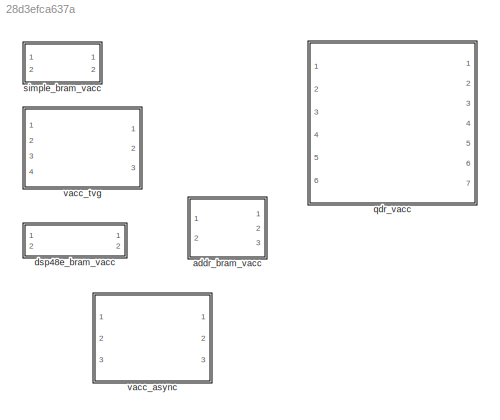
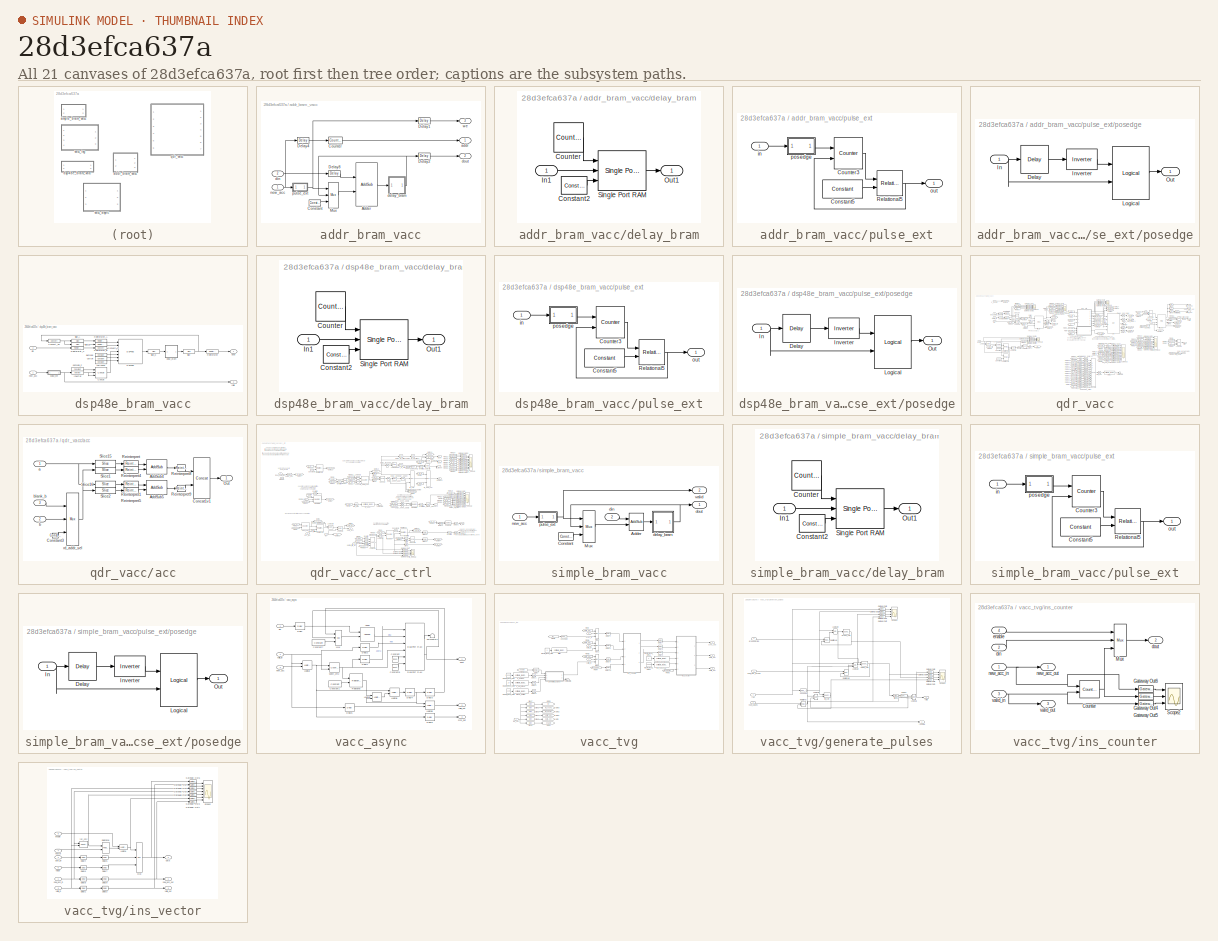
[diagram: thumbnail index - all 21 canvases of the model, root first then tree order]
MODEL slx_28d3efca637a
KIND library
CONFIG AbsTol = auto
CONFIG EnableMultiTasking = off
CONFIG FixedStep = auto
CONFIG MaxStep = auto
CONFIG MinStep = auto
CONFIG RelTol = 1e-3
CONFIG SampleTimeConstraint = Unconstrained
CONFIG SolverName = ode45
CONFIG StartTime = 0.0
CONFIG StopTime = 10.0
BLOCK [SubSystem] addr_bram_vacc
  Ports = [2, 3]
  RequestExecContextInheritance = off
  UserDataPersistent = on
BLOCK [Reference] addr_bram_vacc/Adder  REF=xbsIndex_r4/AddSub
  Ports = [2, 1]
  SourceBlock = xbsIndex_r4/AddSub
  SourceType = Xilinx Adder/Subtracter Block
BLOCK [Reference] addr_bram_vacc/Constant  REF=xbsIndex_r4/Constant
  Ports = [0, 1]
  SourceBlock = xbsIndex_r4/Constant
  SourceType = Xilinx Constant Block Block
BLOCK [Reference] addr_bram_vacc/Counter  REF=xbsIndex_r4/Counter
  Ports = [1, 1]
  SourceBlock = xbsIndex_r4/Counter
  SourceType = Xilinx Counter Block
BLOCK [Reference] addr_bram_vacc/Delay1  REF=xbsIndex_r4/Delay
  Ports = [1, 1]
  SourceBlock = xbsIndex_r4/Delay
  SourceType = Xilinx Delay Block
BLOCK [Reference] addr_bram_vacc/Delay2  REF=xbsIndex_r4/Delay
  Ports = [1, 1]
  SourceBlock = xbsIndex_r4/Delay
  SourceType = Xilinx Delay Block
BLOCK [Reference] addr_bram_vacc/Delay4  REF=xbsIndex_r4/Delay
  Ports = [1, 1]
  SourceBlock = xbsIndex_r4/Delay
  SourceType = Xilinx Delay Block
BLOCK [Reference] addr_bram_vacc/Delay8  REF=xbsIndex_r4/Delay
  Ports = [1, 1]
  SourceBlock = xbsIndex_r4/Delay
  SourceType = Xilinx Delay Block
BLOCK [Reference] addr_bram_vacc/Mux  REF=xbsIndex_r4/Mux
  Ports = [3, 1]
  SourceBlock = xbsIndex_r4/Mux
  SourceType = Xilinx Bus Multiplexer Block
BLOCK [Outport] addr_bram_vacc/addr
  VectorParamsAs1DForOutWhenUnconnected = off
BLOCK [SubSystem] addr_bram_vacc/delay_bram
  Ports = [1, 1]
  RequestExecContextInheritance = off
BLOCK [Reference] addr_bram_vacc/delay_bram/Constant2  REF=xbsIndex_r4/Constant
  Ports = [0, 1]
  SourceBlock = xbsIndex_r4/Constant
  SourceType = Xilinx Constant Block Block
BLOCK [Reference] addr_bram_vacc/delay_bram/Counter  REF=xbsIndex_r4/Counter
  Ports = [0, 1]
  SourceBlock = xbsIndex_r4/Counter
  SourceType = Xilinx Counter Block
BLOCK [Inport] addr_bram_vacc/delay_bram/In1
BLOCK [Outport] addr_bram_vacc/delay_bram/Out1
  VectorParamsAs1DForOutWhenUnconnected = off
BLOCK [Reference] addr_bram_vacc/delay_bram/Single Port RAM  REF=xbsIndex_r4/Single Port RAM
  Ports = [3, 1]
  SourceBlock = xbsIndex_r4/Single Port RAM
  SourceType = Xilinx Single Port Random Access Memory Block
BLOCK [Inport] addr_bram_vacc/din
  Port = 2
BLOCK [Outport] addr_bram_vacc/dout
  Port = 2
  VectorParamsAs1DForOutWhenUnconnected = off
BLOCK [Inport] addr_bram_vacc/new_acc
BLOCK [SubSystem] addr_bram_vacc/pulse_ext
  Ports = [1, 1]
  RequestExecContextInheritance = off
BLOCK [Reference] addr_bram_vacc/pulse_ext/Constant5  REF=xbsIndex_r4/Constant
  Ports = [0, 1]
  SourceBlock = xbsIndex_r4/Constant
  SourceType = Xilinx Constant Block Block
BLOCK [Reference] addr_bram_vacc/pulse_ext/Counter3  REF=xbsIndex_r4/Counter
  Ports = [2, 1]
  SourceBlock = xbsIndex_r4/Counter
  SourceType = Xilinx Counter Block
BLOCK [Reference] addr_bram_vacc/pulse_ext/Relational5  REF=xbsIndex_r4/Relational
  Ports = [2, 1]
  SourceBlock = xbsIndex_r4/Relational
  SourceType = Xilinx Arithmetic Relational Operator Block
BLOCK [Inport] addr_bram_vacc/pulse_ext/in
BLOCK [Outport] addr_bram_vacc/pulse_ext/out
  VectorParamsAs1DForOutWhenUnconnected = off
BLOCK [SubSystem] addr_bram_vacc/pulse_ext/posedge
  Ports = [1, 1]
  RequestExecContextInheritance = off
  Tag = Rising Edge Detector
BLOCK [Reference] addr_bram_vacc/pulse_ext/posedge/Delay  REF=xbsIndex_r4/Delay
  Ports = [1, 1]
  SourceBlock = xbsIndex_r4/Delay
  SourceType = Xilinx Delay Block
BLOCK [Inport] addr_bram_vacc/pulse_ext/posedge/In
BLOCK [Reference] addr_bram_vacc/pulse_ext/posedge/Inverter  REF=xbsIndex_r4/Inverter
  Ports = [1, 1]
  SourceBlock = xbsIndex_r4/Inverter
  SourceType = Xilinx Inverter Block
BLOCK [Reference] addr_bram_vacc/pulse_ext/posedge/Logical  REF=xbsIndex_r4/Logical
  Ports = [2, 1]
  SourceBlock = xbsIndex_r4/Logical
  SourceType = Xilinx Logical Block Block
BLOCK [Outport] addr_bram_vacc/pulse_ext/posedge/Out
  VectorParamsAs1DForOutWhenUnconnected = off
BLOCK [Outport] addr_bram_vacc/we
  Port = 3
  VectorParamsAs1DForOutWhenUnconnected = off
BLOCK [SubSystem] dsp48e_bram_vacc
  Ports = [2, 2]
  RequestExecContextInheritance = off
  UserDataPersistent = on
BLOCK [Reference] dsp48e_bram_vacc/Concat  REF=xbsIndex_r4/Concat
  Ports = [3, 1]
  SourceBlock = xbsIndex_r4/Concat
  SourceType = Xilinx Bus Concatenator Block
BLOCK [Reference] dsp48e_bram_vacc/Convert_AB  REF=xbsIndex_r4/Convert
  Ports = [1, 1]
  SourceBlock = xbsIndex_r4/Convert
  SourceType = Xilinx Type Converter Block
BLOCK [Reference] dsp48e_bram_vacc/Convert_C  REF=xbsIndex_r4/Convert
  Ports = [1, 1]
  SourceBlock = xbsIndex_r4/Convert
  SourceType = Xilinx Type Converter Block
BLOCK [Reference] dsp48e_bram_vacc/DSP48E  REF=xbsIndex_r4/DSP48E
  Ports = [7, 1]
  SourceBlock = xbsIndex_r4/DSP48E
  SourceType = Xilinx DSP48E Block
BLOCK [Reference] dsp48e_bram_vacc/Inverter  REF=xbsIndex_r4/Inverter
  Ports = [1, 1]
  SourceBlock = xbsIndex_r4/Inverter
  SourceType = Xilinx Inverter Block
BLOCK [Reference] dsp48e_bram_vacc/Reinterpret  REF=xbsIndex_r4/Reinterpret
  Ports = [1, 1]
  SourceBlock = xbsIndex_r4/Reinterpret
  SourceType = Xilinx Type Reinterpreter Block
BLOCK [Reference] dsp48e_bram_vacc/Reinterpret_A  REF=xbsIndex_r4/Reinterpret
  Ports = [1, 1]
  SourceBlock = xbsIndex_r4/Reinterpret
  SourceType = Xilinx Type Reinterpreter Block
BLOCK [Reference] dsp48e_bram_vacc/Reinterpret_B  REF=xbsIndex_r4/Reinterpret
  Ports = [1, 1]
  SourceBlock = xbsIndex_r4/Reinterpret
  SourceType = Xilinx Type Reinterpreter Block
BLOCK [Reference] dsp48e_bram_vacc/Reinterpret_C  REF=xbsIndex_r4/Reinterpret
  Ports = [1, 1]
  SourceBlock = xbsIndex_r4/Reinterpret
  SourceType = Xilinx Type Reinterpreter Block
BLOCK [Reference] dsp48e_bram_vacc/Slice  REF=xbsIndex_r4/Slice
  Ports = [1, 1]
  SourceBlock = xbsIndex_r4/Slice
  SourceType = Xilinx Bit Slice Extractor Block
BLOCK [Reference] dsp48e_bram_vacc/Slice_A  REF=xbsIndex_r4/Slice
  Ports = [1, 1]
  SourceBlock = xbsIndex_r4/Slice
  SourceType = Xilinx Bit Slice Extractor Block
BLOCK [Reference] dsp48e_bram_vacc/Slice_B  REF=xbsIndex_r4/Slice
  Ports = [1, 1]
  SourceBlock = xbsIndex_r4/Slice
  SourceType = Xilinx Bit Slice Extractor Block
BLOCK [Reference] dsp48e_bram_vacc/Slice_p  REF=xbsIndex_r4/Slice
  Ports = [1, 1]
  SourceBlock = xbsIndex_r4/Slice
  SourceType = Xilinx Bit Slice Extractor Block
BLOCK [Reference] dsp48e_bram_vacc/alumode  REF=xbsIndex_r4/Constant
  Ports = [0, 1]
  SourceBlock = xbsIndex_r4/Constant
  SourceType = Xilinx Constant Block Block
BLOCK [Reference] dsp48e_bram_vacc/carryin  REF=xbsIndex_r4/Constant
  Ports = [0, 1]
  SourceBlock = xbsIndex_r4/Constant
  SourceType = Xilinx Constant Block Block
BLOCK [Reference] dsp48e_bram_vacc/carryinsel  REF=xbsIndex_r4/Constant
  Ports = [0, 1]
  SourceBlock = xbsIndex_r4/Constant
  SourceType = Xilinx Constant Block Block
BLOCK [SubSystem] dsp48e_bram_vacc/delay_bram
  Ports = [1, 1]
  RequestExecContextInheritance = off
BLOCK [Reference] dsp48e_bram_vacc/delay_bram/Constant2  REF=xbsIndex_r4/Constant
  Ports = [0, 1]
  SourceBlock = xbsIndex_r4/Constant
  SourceType = Xilinx Constant Block Block
BLOCK [Reference] dsp48e_bram_vacc/delay_bram/Counter  REF=xbsIndex_r4/Counter
  Ports = [0, 1]
  SourceBlock = xbsIndex_r4/Counter
  SourceType = Xilinx Counter Block
BLOCK [Inport] dsp48e_bram_vacc/delay_bram/In1
BLOCK [Outport] dsp48e_bram_vacc/delay_bram/Out1
  VectorParamsAs1DForOutWhenUnconnected = off
BLOCK [Reference] dsp48e_bram_vacc/delay_bram/Single Port RAM  REF=xbsIndex_r4/Single Port RAM
  Ports = [3, 1]
  SourceBlock = xbsIndex_r4/Single Port RAM
  SourceType = Xilinx Single Port Random Access Memory Block
BLOCK [Inport] dsp48e_bram_vacc/din
  Port = 2
BLOCK [Outport] dsp48e_bram_vacc/dout
  VectorParamsAs1DForOutWhenUnconnected = off
BLOCK [Inport] dsp48e_bram_vacc/new_acc
BLOCK [Reference] dsp48e_bram_vacc/opmode_Z  REF=xbsIndex_r4/Constant
  Ports = [0, 1]
  SourceBlock = xbsIndex_r4/Constant
  SourceType = Xilinx Constant Block Block
BLOCK [SubSystem] dsp48e_bram_vacc/pulse_ext
  Ports = [1, 1]
  RequestExecContextInheritance = off
BLOCK [Reference] dsp48e_bram_vacc/pulse_ext/Constant5  REF=xbsIndex_r4/Constant
  Ports = [0, 1]
  SourceBlock = xbsIndex_r4/Constant
  SourceType = Xilinx Constant Block Block
BLOCK [Reference] dsp48e_bram_vacc/pulse_ext/Counter3  REF=xbsIndex_r4/Counter
  Ports = [2, 1]
  SourceBlock = xbsIndex_r4/Counter
  SourceType = Xilinx Counter Block
BLOCK [Reference] dsp48e_bram_vacc/pulse_ext/Relational5  REF=xbsIndex_r4/Relational
  Ports = [2, 1]
  SourceBlock = xbsIndex_r4/Relational
  SourceType = Xilinx Arithmetic Relational Operator Block
BLOCK [Inport] dsp48e_bram_vacc/pulse_ext/in
BLOCK [Outport] dsp48e_bram_vacc/pulse_ext/out
  VectorParamsAs1DForOutWhenUnconnected = off
BLOCK [SubSystem] dsp48e_bram_vacc/pulse_ext/posedge
  Ports = [1, 1]
  RequestExecContextInheritance = off
  Tag = Rising Edge Detector
BLOCK [Reference] dsp48e_bram_vacc/pulse_ext/posedge/Delay  REF=xbsIndex_r4/Delay
  Ports = [1, 1]
  SourceBlock = xbsIndex_r4/Delay
  SourceType = Xilinx Delay Block
BLOCK [Inport] dsp48e_bram_vacc/pulse_ext/posedge/In
BLOCK [Reference] dsp48e_bram_vacc/pulse_ext/posedge/Inverter  REF=xbsIndex_r4/Inverter
  Ports = [1, 1]
  SourceBlock = xbsIndex_r4/Inverter
  SourceType = Xilinx Inverter Block
BLOCK [Reference] dsp48e_bram_vacc/pulse_ext/posedge/Logical  REF=xbsIndex_r4/Logical
  Ports = [2, 1]
  SourceBlock = xbsIndex_r4/Logical
  SourceType = Xilinx Logical Block Block
BLOCK [Outport] dsp48e_bram_vacc/pulse_ext/posedge/Out
  VectorParamsAs1DForOutWhenUnconnected = off
BLOCK [Outport] dsp48e_bram_vacc/valid
  Port = 2
  VectorParamsAs1DForOutWhenUnconnected = off
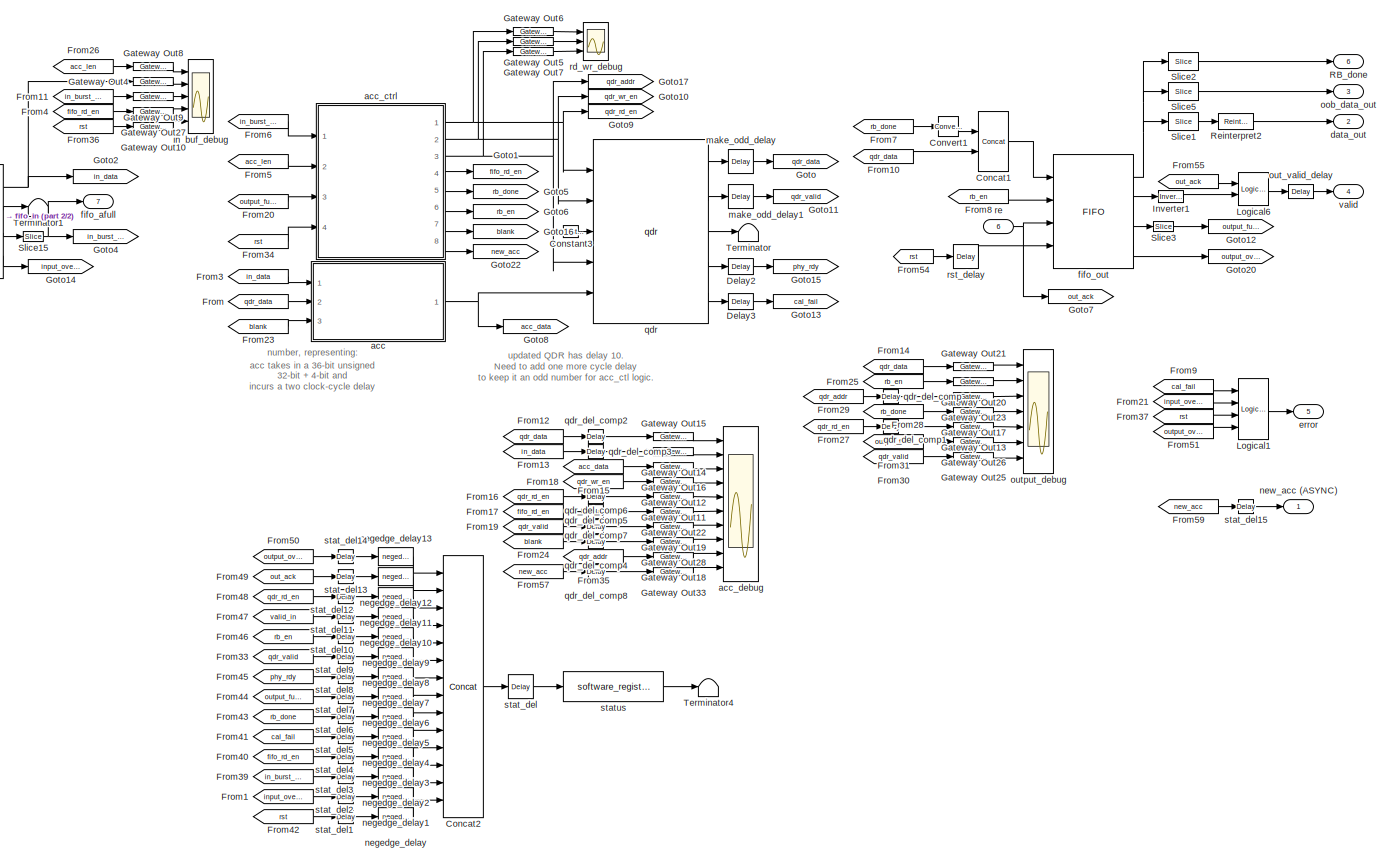
[diagram: qdr_vacc - part 1/2, center side, full height]
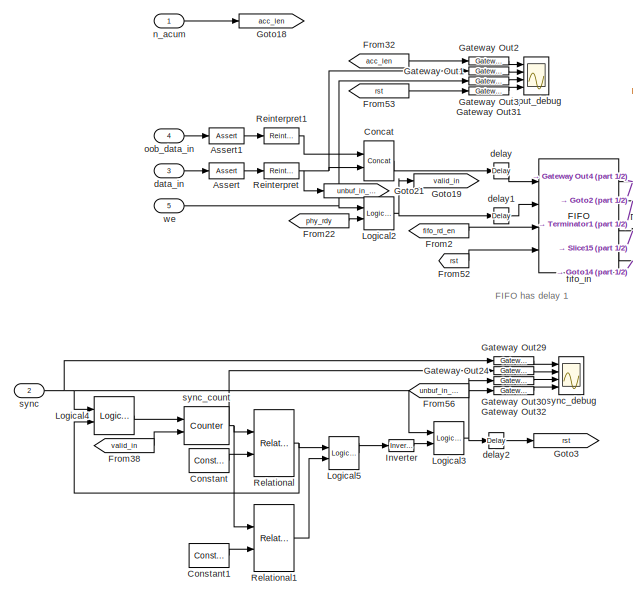
[diagram: qdr_vacc - part 2/2, middle left region]
BLOCK [SubSystem] qdr_vacc
  AttributesFormatString = Vector Length: 139264
  Ports = [6, 7]
  RequestExecContextInheritance = off
BLOCK [Reference] qdr_vacc/Assert  REF=xbsIndex_r4/Assert
  Ports = [1, 1]
  SourceBlock = xbsIndex_r4/Assert
  SourceType = Xilinx Assert Block
BLOCK [Reference] qdr_vacc/Assert1  REF=xbsIndex_r4/Assert
  Ports = [1, 1]
  SourceBlock = xbsIndex_r4/Assert
  SourceType = Xilinx Assert Block
BLOCK [Reference] qdr_vacc/Concat  REF=xbsIndex_r4/Concat
  Ports = [2, 1]
  SourceBlock = xbsIndex_r4/Concat
  SourceType = Xilinx Bus Concatenator Block
BLOCK [Reference] qdr_vacc/Concat1  REF=xbsIndex_r4/Concat
  Ports = [2, 1]
  SourceBlock = xbsIndex_r4/Concat
  SourceType = Xilinx Bus Concatenator Block
BLOCK [Reference] qdr_vacc/Concat2  REF=xbsIndex_r4/Concat
  Ports = [14, 1]
  SourceBlock = xbsIndex_r4/Concat
  SourceType = Xilinx Bus Concatenator Block
BLOCK [Reference] qdr_vacc/Constant  REF=xbsIndex_r4/Constant
  Ports = [0, 1]
  SourceBlock = xbsIndex_r4/Constant
  SourceType = Xilinx Constant Block Block
BLOCK [Reference] qdr_vacc/Constant1  REF=xbsIndex_r4/Constant
  Ports = [0, 1]
  SourceBlock = xbsIndex_r4/Constant
  SourceType = Xilinx Constant Block Block
BLOCK [Reference] qdr_vacc/Constant3  REF=xbsIndex_r4/Constant
  Ports = [0, 1]
  SourceBlock = xbsIndex_r4/Constant
  SourceType = Xilinx Constant Block Block
BLOCK [Reference] qdr_vacc/Convert1  REF=xbsIndex_r4/Convert
  Ports = [1, 1]
  SourceBlock = xbsIndex_r4/Convert
  SourceType = Xilinx Type Converter Block
BLOCK [Reference] qdr_vacc/Delay2  REF=xbsIndex_r4/Delay
  Ports = [1, 1]
  SourceBlock = xbsIndex_r4/Delay
  SourceType = Xilinx Delay Block
BLOCK [Reference] qdr_vacc/Delay3  REF=xbsIndex_r4/Delay
  Ports = [1, 1]
  SourceBlock = xbsIndex_r4/Delay
  SourceType = Xilinx Delay Block
BLOCK [From] qdr_vacc/From
  CloseFcn = tagdialog Close
  GotoTag = qdr_data
BLOCK [From] qdr_vacc/From1
  CloseFcn = tagdialog Close
  GotoTag = input_overflow
BLOCK [From] qdr_vacc/From10
  CloseFcn = tagdialog Close
  GotoTag = qdr_data
BLOCK [From] qdr_vacc/From11
  CloseFcn = tagdialog Close
  GotoTag = in_burst_rdy
BLOCK [From] qdr_vacc/From12
  CloseFcn = tagdialog Close
  GotoTag = qdr_data
BLOCK [From] qdr_vacc/From13
  CloseFcn = tagdialog Close
  GotoTag = in_data
BLOCK [From] qdr_vacc/From14
  CloseFcn = tagdialog Close
  GotoTag = qdr_data
BLOCK [From] qdr_vacc/From15
  CloseFcn = tagdialog Close
  GotoTag = acc_data
BLOCK [From] qdr_vacc/From16
  CloseFcn = tagdialog Close
  GotoTag = qdr_rd_en
BLOCK [From] qdr_vacc/From17
  CloseFcn = tagdialog Close
  GotoTag = fifo_rd_en
BLOCK [From] qdr_vacc/From18
  CloseFcn = tagdialog Close
  GotoTag = qdr_wr_en
BLOCK [From] qdr_vacc/From19
  CloseFcn = tagdialog Close
  GotoTag = qdr_valid
BLOCK [From] qdr_vacc/From2
  CloseFcn = tagdialog Close
  GotoTag = fifo_rd_en
BLOCK [From] qdr_vacc/From20
  CloseFcn = tagdialog Close
  GotoTag = output_full
BLOCK [From] qdr_vacc/From21
  CloseFcn = tagdialog Close
  GotoTag = input_overflow
BLOCK [From] qdr_vacc/From22
  CloseFcn = tagdialog Close
  GotoTag = phy_rdy
BLOCK [From] qdr_vacc/From23
  CloseFcn = tagdialog Close
  GotoTag = blank
BLOCK [From] qdr_vacc/From24
  CloseFcn = tagdialog Close
  GotoTag = blank
BLOCK [From] qdr_vacc/From25
  CloseFcn = tagdialog Close
  GotoTag = rb_en
BLOCK [From] qdr_vacc/From26
  CloseFcn = tagdialog Close
  GotoTag = acc_len
BLOCK [From] qdr_vacc/From27
  CloseFcn = tagdialog Close
  GotoTag = qdr_rd_en
BLOCK [From] qdr_vacc/From28
  CloseFcn = tagdialog Close
  GotoTag = rb_done
BLOCK [From] qdr_vacc/From29
  CloseFcn = tagdialog Close
  GotoTag = qdr_addr
BLOCK [From] qdr_vacc/From3
  CloseFcn = tagdialog Close
  GotoTag = in_data
BLOCK [From] qdr_vacc/From30
  CloseFcn = tagdialog Close
  GotoTag = qdr_valid
BLOCK [From] qdr_vacc/From31
  CloseFcn = tagdialog Close
  GotoTag = output_full
BLOCK [From] qdr_vacc/From32
  CloseFcn = tagdialog Close
  GotoTag = acc_len
BLOCK [From] qdr_vacc/From33
  CloseFcn = tagdialog Close
  GotoTag = qdr_valid
BLOCK [From] qdr_vacc/From34
  CloseFcn = tagdialog Close
  GotoTag = rst
BLOCK [From] qdr_vacc/From35
  CloseFcn = tagdialog Close
  GotoTag = qdr_addr
BLOCK [From] qdr_vacc/From36
  CloseFcn = tagdialog Close
  GotoTag = rst
BLOCK [From] qdr_vacc/From37
  CloseFcn = tagdialog Close
  GotoTag = rst
BLOCK [From] qdr_vacc/From38
  CloseFcn = tagdialog Close
  GotoTag = valid_in
BLOCK [From] qdr_vacc/From39
  CloseFcn = tagdialog Close
  GotoTag = in_burst_rdy
BLOCK [From] qdr_vacc/From4
  CloseFcn = tagdialog Close
  GotoTag = fifo_rd_en
BLOCK [From] qdr_vacc/From40
  CloseFcn = tagdialog Close
  GotoTag = fifo_rd_en
BLOCK [From] qdr_vacc/From41
  CloseFcn = tagdialog Close
  GotoTag = cal_fail
BLOCK [From] qdr_vacc/From42
  CloseFcn = tagdialog Close
  GotoTag = rst
BLOCK [From] qdr_vacc/From43
  CloseFcn = tagdialog Close
  GotoTag = rb_done
BLOCK [From] qdr_vacc/From44
  CloseFcn = tagdialog Close
  GotoTag = output_full
BLOCK [From] qdr_vacc/From45
  CloseFcn = tagdialog Close
  GotoTag = phy_rdy
BLOCK [From] qdr_vacc/From46
  CloseFcn = tagdialog Close
  GotoTag = rb_en
BLOCK [From] qdr_vacc/From47
  CloseFcn = tagdialog Close
  GotoTag = valid_in
BLOCK [From] qdr_vacc/From48
  CloseFcn = tagdialog Close
  GotoTag = qdr_rd_en
BLOCK [From] qdr_vacc/From49
  CloseFcn = tagdialog Close
  GotoTag = out_ack
BLOCK [From] qdr_vacc/From5
  CloseFcn = tagdialog Close
  GotoTag = acc_len
BLOCK [From] qdr_vacc/From50
  CloseFcn = tagdialog Close
  GotoTag = output_over
BLOCK [From] qdr_vacc/From51
  CloseFcn = tagdialog Close
  GotoTag = output_over
BLOCK [From] qdr_vacc/From52
  CloseFcn = tagdialog Close
  GotoTag = rst
BLOCK [From] qdr_vacc/From53
  CloseFcn = tagdialog Close
  GotoTag = rst
BLOCK [From] qdr_vacc/From54
  CloseFcn = tagdialog Close
  GotoTag = rst
BLOCK [From] qdr_vacc/From55
  CloseFcn = tagdialog Close
  GotoTag = out_ack
BLOCK [From] qdr_vacc/From56
  CloseFcn = tagdialog Close
  GotoTag = unbuf_in_data
BLOCK [From] qdr_vacc/From57
  CloseFcn = tagdialog Close
  GotoTag = new_acc
BLOCK [From] qdr_vacc/From59
  CloseFcn = tagdialog Close
  GotoTag = new_acc
BLOCK [From] qdr_vacc/From6
  CloseFcn = tagdialog Close
  GotoTag = in_burst_rdy
BLOCK [From] qdr_vacc/From7
  CloseFcn = tagdialog Close
  GotoTag = rb_done
BLOCK [From] qdr_vacc/From8
  CloseFcn = tagdialog Close
  GotoTag = rb_en
BLOCK [From] qdr_vacc/From9
  CloseFcn = tagdialog Close
  GotoTag = cal_fail
BLOCK [Reference] qdr_vacc/Gateway Out1  REF=xbsIndex_r4/Gateway Out
  Ports = [1, 1]
  SourceBlock = xbsIndex_r4/Gateway Out
  SourceType = Xilinx Gateway Out Block
BLOCK [Reference] qdr_vacc/Gateway Out10  REF=xbsIndex_r4/Gateway Out
  Ports = [1, 1]
  SourceBlock = xbsIndex_r4/Gateway Out
  SourceType = Xilinx Gateway Out Block
BLOCK [Reference] qdr_vacc/Gateway Out11  REF=xbsIndex_r4/Gateway Out
  Ports = [1, 1]
  SourceBlock = xbsIndex_r4/Gateway Out
  SourceType = Xilinx Gateway Out Block
BLOCK [Reference] qdr_vacc/Gateway Out12  REF=xbsIndex_r4/Gateway Out
  Ports = [1, 1]
  SourceBlock = xbsIndex_r4/Gateway Out
  SourceType = Xilinx Gateway Out Block
BLOCK [Reference] qdr_vacc/Gateway Out13  REF=xbsIndex_r4/Gateway Out
  Ports = [1, 1]
  SourceBlock = xbsIndex_r4/Gateway Out
  SourceType = Xilinx Gateway Out Block
BLOCK [Reference] qdr_vacc/Gateway Out14  REF=xbsIndex_r4/Gateway Out
  Ports = [1, 1]
  SourceBlock = xbsIndex_r4/Gateway Out
  SourceType = Xilinx Gateway Out Block
BLOCK [Reference] qdr_vacc/Gateway Out15  REF=xbsIndex_r4/Gateway Out
  Ports = [1, 1]
  SourceBlock = xbsIndex_r4/Gateway Out
  SourceType = Xilinx Gateway Out Block
BLOCK [Reference] qdr_vacc/Gateway Out16  REF=xbsIndex_r4/Gateway Out
  Ports = [1, 1]
  SourceBlock = xbsIndex_r4/Gateway Out
  SourceType = Xilinx Gateway Out Block
BLOCK [Reference] qdr_vacc/Gateway Out17  REF=xbsIndex_r4/Gateway Out
  Ports = [1, 1]
  SourceBlock = xbsIndex_r4/Gateway Out
  SourceType = Xilinx Gateway Out Block
BLOCK [Reference] qdr_vacc/Gateway Out18  REF=xbsIndex_r4/Gateway Out
  Ports = [1, 1]
  SourceBlock = xbsIndex_r4/Gateway Out
  SourceType = Xilinx Gateway Out Block
BLOCK [Reference] qdr_vacc/Gateway Out19  REF=xbsIndex_r4/Gateway Out
  Ports = [1, 1]
  SourceBlock = xbsIndex_r4/Gateway Out
  SourceType = Xilinx Gateway Out Block
BLOCK [Reference] qdr_vacc/Gateway Out2  REF=xbsIndex_r4/Gateway Out
  Ports = [1, 1]
  SourceBlock = xbsIndex_r4/Gateway Out
  SourceType = Xilinx Gateway Out Block
BLOCK [Reference] qdr_vacc/Gateway Out20  REF=xbsIndex_r4/Gateway Out
  Ports = [1, 1]
  SourceBlock = xbsIndex_r4/Gateway Out
  SourceType = Xilinx Gateway Out Block
BLOCK [Reference] qdr_vacc/Gateway Out21  REF=xbsIndex_r4/Gateway Out
  Ports = [1, 1]
  SourceBlock = xbsIndex_r4/Gateway Out
  SourceType = Xilinx Gateway Out Block
BLOCK [Reference] qdr_vacc/Gateway Out22  REF=xbsIndex_r4/Gateway Out
  Ports = [1, 1]
  SourceBlock = xbsIndex_r4/Gateway Out
  SourceType = Xilinx Gateway Out Block
BLOCK [Reference] qdr_vacc/Gateway Out23  REF=xbsIndex_r4/Gateway Out
  Ports = [1, 1]
  SourceBlock = xbsIndex_r4/Gateway Out
  SourceType = Xilinx Gateway Out Block
BLOCK [Reference] qdr_vacc/Gateway Out24  REF=xbsIndex_r4/Gateway Out
  Ports = [1, 1]
  SourceBlock = xbsIndex_r4/Gateway Out
  SourceType = Xilinx Gateway Out Block
BLOCK [Reference] qdr_vacc/Gateway Out25  REF=xbsIndex_r4/Gateway Out
  Ports = [1, 1]
  SourceBlock = xbsIndex_r4/Gateway Out
  SourceType = Xilinx Gateway Out Block
BLOCK [Reference] qdr_vacc/Gateway Out26  REF=xbsIndex_r4/Gateway Out
  Ports = [1, 1]
  SourceBlock = xbsIndex_r4/Gateway Out
  SourceType = Xilinx Gateway Out Block
BLOCK [Reference] qdr_vacc/Gateway Out27  REF=xbsIndex_r4/Gateway Out
  Ports = [1, 1]
  SourceBlock = xbsIndex_r4/Gateway Out
  SourceType = Xilinx Gateway Out Block
BLOCK [Reference] qdr_vacc/Gateway Out28  REF=xbsIndex_r4/Gateway Out
  Ports = [1, 1]
  SourceBlock = xbsIndex_r4/Gateway Out
  SourceType = Xilinx Gateway Out Block
BLOCK [Reference] qdr_vacc/Gateway Out29  REF=xbsIndex_r4/Gateway Out
  Ports = [1, 1]
  SourceBlock = xbsIndex_r4/Gateway Out
  SourceType = Xilinx Gateway Out Block
BLOCK [Reference] qdr_vacc/Gateway Out3  REF=xbsIndex_r4/Gateway Out
  Ports = [1, 1]
  SourceBlock = xbsIndex_r4/Gateway Out
  SourceType = Xilinx Gateway Out Block
BLOCK [Reference] qdr_vacc/Gateway Out30  REF=xbsIndex_r4/Gateway Out
  Ports = [1, 1]
  SourceBlock = xbsIndex_r4/Gateway Out
  SourceType = Xilinx Gateway Out Block
BLOCK [Reference] qdr_vacc/Gateway Out31  REF=xbsIndex_r4/Gateway Out
  Ports = [1, 1]
  SourceBlock = xbsIndex_r4/Gateway Out
  SourceType = Xilinx Gateway Out Block
BLOCK [Reference] qdr_vacc/Gateway Out32  REF=xbsIndex_r4/Gateway Out
  Ports = [1, 1]
  SourceBlock = xbsIndex_r4/Gateway Out
  SourceType = Xilinx Gateway Out Block
BLOCK [Reference] qdr_vacc/Gateway Out33  REF=xbsIndex_r4/Gateway Out
  Ports = [1, 1]
  SourceBlock = xbsIndex_r4/Gateway Out
  SourceType = Xilinx Gateway Out Block
BLOCK [Reference] qdr_vacc/Gateway Out4  REF=xbsIndex_r4/Gateway Out
  Ports = [1, 1]
  SourceBlock = xbsIndex_r4/Gateway Out
  SourceType = Xilinx Gateway Out Block
BLOCK [Reference] qdr_vacc/Gateway Out5  REF=xbsIndex_r4/Gateway Out
  Ports = [1, 1]
  SourceBlock = xbsIndex_r4/Gateway Out
  SourceType = Xilinx Gateway Out Block
BLOCK [Reference] qdr_vacc/Gateway Out6  REF=xbsIndex_r4/Gateway Out
  Ports = [1, 1]
  SourceBlock = xbsIndex_r4/Gateway Out
  SourceType = Xilinx Gateway Out Block
BLOCK [Reference] qdr_vacc/Gateway Out7  REF=xbsIndex_r4/Gateway Out
  Ports = [1, 1]
  SourceBlock = xbsIndex_r4/Gateway Out
  SourceType = Xilinx Gateway Out Block
BLOCK [Reference] qdr_vacc/Gateway Out8  REF=xbsIndex_r4/Gateway Out
  Ports = [1, 1]
  SourceBlock = xbsIndex_r4/Gateway Out
  SourceType = Xilinx Gateway Out Block
BLOCK [Reference] qdr_vacc/Gateway Out9  REF=xbsIndex_r4/Gateway Out
  Ports = [1, 1]
  SourceBlock = xbsIndex_r4/Gateway Out
  SourceType = Xilinx Gateway Out Block
BLOCK [Goto] qdr_vacc/Goto
  GotoTag = qdr_data
BLOCK [Goto] qdr_vacc/Goto1
  GotoTag = fifo_rd_en
BLOCK [Goto] qdr_vacc/Goto10
  GotoTag = qdr_wr_en
BLOCK [Goto] qdr_vacc/Goto11
  GotoTag = qdr_valid
BLOCK [Goto] qdr_vacc/Goto12
  GotoTag = output_full
BLOCK [Goto] qdr_vacc/Goto13
  GotoTag = cal_fail
BLOCK [Goto] qdr_vacc/Goto14
  GotoTag = input_overflow
BLOCK [Goto] qdr_vacc/Goto15
  GotoTag = phy_rdy
BLOCK [Goto] qdr_vacc/Goto16
  GotoTag = blank
BLOCK [Goto] qdr_vacc/Goto17
  GotoTag = qdr_addr
BLOCK [Goto] qdr_vacc/Goto18
  GotoTag = acc_len
BLOCK [Goto] qdr_vacc/Goto19
  GotoTag = valid_in
BLOCK [Goto] qdr_vacc/Goto2
  GotoTag = in_data
BLOCK [Goto] qdr_vacc/Goto20
  GotoTag = output_over
BLOCK [Goto] qdr_vacc/Goto21
  GotoTag = unbuf_in_data
BLOCK [Goto] qdr_vacc/Goto22
  GotoTag = new_acc
BLOCK [Goto] qdr_vacc/Goto3
  GotoTag = rst
BLOCK [Goto] qdr_vacc/Goto4
  GotoTag = in_burst_rdy
BLOCK [Goto] qdr_vacc/Goto5
  GotoTag = rb_done
BLOCK [Goto] qdr_vacc/Goto6
  GotoTag = rb_en
BLOCK [Goto] qdr_vacc/Goto7
  GotoTag = out_ack
BLOCK [Goto] qdr_vacc/Goto8
  GotoTag = acc_data
BLOCK [Goto] qdr_vacc/Goto9
  GotoTag = qdr_rd_en
BLOCK [Reference] qdr_vacc/Inverter  REF=xbsIndex_r4/Inverter
  Ports = [1, 1]
  SourceBlock = xbsIndex_r4/Inverter
  SourceType = Xilinx Inverter Block
BLOCK [Reference] qdr_vacc/Inverter1  REF=xbsIndex_r4/Inverter
  Ports = [1, 1]
  SourceBlock = xbsIndex_r4/Inverter
  SourceType = Xilinx Inverter Block
BLOCK [Reference] qdr_vacc/Logical1  REF=xbsIndex_r4/Logical
  Ports = [4, 1]
  SourceBlock = xbsIndex_r4/Logical
  SourceType = Xilinx Logical Block Block
BLOCK [Reference] qdr_vacc/Logical2  REF=xbsIndex_r4/Logical
  Ports = [2, 1]
  SourceBlock = xbsIndex_r4/Logical
  SourceType = Xilinx Logical Block Block
BLOCK [Reference] qdr_vacc/Logical3  REF=xbsIndex_r4/Logical
  Ports = [2, 1]
  SourceBlock = xbsIndex_r4/Logical
  SourceType = Xilinx Logical Block Block
BLOCK [Reference] qdr_vacc/Logical4  REF=xbsIndex_r4/Logical
  Ports = [2, 1]
  SourceBlock = xbsIndex_r4/Logical
  SourceType = Xilinx Logical Block Block
BLOCK [Reference] qdr_vacc/Logical5  REF=xbsIndex_r4/Logical
  Ports = [2, 1]
  SourceBlock = xbsIndex_r4/Logical
  SourceType = Xilinx Logical Block Block
BLOCK [Reference] qdr_vacc/Logical6  REF=xbsIndex_r4/Logical
  Ports = [2, 1]
  SourceBlock = xbsIndex_r4/Logical
  SourceType = Xilinx Logical Block Block
BLOCK [Outport] qdr_vacc/RB_done
  Port = 6
  VectorParamsAs1DForOutWhenUnconnected = off
BLOCK [Reference] qdr_vacc/Reinterpret  REF=xbsIndex_r4/Reinterpret
  Ports = [1, 1]
  SourceBlock = xbsIndex_r4/Reinterpret
  SourceType = Xilinx Type Reinterpreter Block
BLOCK [Reference] qdr_vacc/Reinterpret1  REF=xbsIndex_r4/Reinterpret
  Ports = [1, 1]
  SourceBlock = xbsIndex_r4/Reinterpret
  SourceType = Xilinx Type Reinterpreter Block
BLOCK [Reference] qdr_vacc/Reinterpret2  REF=xbsIndex_r4/Reinterpret
  Ports = [1, 1]
  SourceBlock = xbsIndex_r4/Reinterpret
  SourceType = Xilinx Type Reinterpreter Block
BLOCK [Reference] qdr_vacc/Relational  REF=xbsIndex_r4/Relational
  Ports = [2, 1]
  SourceBlock = xbsIndex_r4/Relational
  SourceType = Xilinx Arithmetic Relational Operator Block
BLOCK [Reference] qdr_vacc/Relational1  REF=xbsIndex_r4/Relational
  Ports = [2, 1]
  SourceBlock = xbsIndex_r4/Relational
  SourceType = Xilinx Arithmetic Relational Operator Block
BLOCK [Reference] qdr_vacc/Slice1  REF=xbsIndex_r4/Slice
  Ports = [1, 1]
  SourceBlock = xbsIndex_r4/Slice
  SourceType = Xilinx Bit Slice Extractor Block
BLOCK [Reference] qdr_vacc/Slice15  REF=xbsIndex_r4/Slice
  Ports = [1, 1]
  SourceBlock = xbsIndex_r4/Slice
  SourceType = Xilinx Bit Slice Extractor Block
BLOCK [Reference] qdr_vacc/Slice2  REF=xbsIndex_r4/Slice
  Ports = [1, 1]
  SourceBlock = xbsIndex_r4/Slice
  SourceType = Xilinx Bit Slice Extractor Block
BLOCK [Reference] qdr_vacc/Slice3  REF=xbsIndex_r4/Slice
  Ports = [1, 1]
  SourceBlock = xbsIndex_r4/Slice
  SourceType = Xilinx Bit Slice Extractor Block
BLOCK [Reference] qdr_vacc/Slice5  REF=xbsIndex_r4/Slice
  Ports = [1, 1]
  SourceBlock = xbsIndex_r4/Slice
  SourceType = Xilinx Bit Slice Extractor Block
BLOCK [Terminator] qdr_vacc/Terminator
BLOCK [Terminator] qdr_vacc/Terminator1
BLOCK [Terminator] qdr_vacc/Terminator4
BLOCK [SubSystem] qdr_vacc/acc
  Ports = [3, 1]
  RequestExecContextInheritance = off
BLOCK [Reference] qdr_vacc/acc/AddSub4  REF=xbsIndex_r4/AddSub
  Ports = [2, 1]
  SourceBlock = xbsIndex_r4/AddSub
  SourceType = Xilinx Adder/Subtracter Block
BLOCK [Reference] qdr_vacc/acc/AddSub5  REF=xbsIndex_r4/AddSub
  Ports = [2, 1]
  SourceBlock = xbsIndex_r4/AddSub
  SourceType = Xilinx Adder/Subtracter Block
BLOCK [Reference] qdr_vacc/acc/Concat1v1  REF=xbsIndex_r4/Concat
  Ports = [2, 1]
  SourceBlock = xbsIndex_r4/Concat
  SourceType = Xilinx Bus Concatenator Block
BLOCK [Reference] qdr_vacc/acc/Constant3  REF=xbsIndex_r4/Constant
  Ports = [0, 1]
  SourceBlock = xbsIndex_r4/Constant
  SourceType = Xilinx Constant Block Block
BLOCK [Outport] qdr_vacc/acc/Out
  VectorParamsAs1DForOutWhenUnconnected = off
BLOCK [Reference] qdr_vacc/acc/Reinterpret  REF=xbsIndex_r4/Reinterpret
  Ports = [1, 1]
  SourceBlock = xbsIndex_r4/Reinterpret
  SourceType = Xilinx Type Reinterpreter Block
BLOCK [Reference] qdr_vacc/acc/Reinterpret1  REF=xbsIndex_r4/Reinterpret
  Ports = [1, 1]
  SourceBlock = xbsIndex_r4/Reinterpret
  SourceType = Xilinx Type Reinterpreter Block
BLOCK [Reference] qdr_vacc/acc/Reinterpret4  REF=xbsIndex_r4/Reinterpret
  Ports = [1, 1]
  SourceBlock = xbsIndex_r4/Reinterpret
  SourceType = Xilinx Type Reinterpreter Block
BLOCK [Reference] qdr_vacc/acc/Reinterpret5  REF=xbsIndex_r4/Reinterpret
  Ports = [1, 1]
  SourceBlock = xbsIndex_r4/Reinterpret
  SourceType = Xilinx Type Reinterpreter Block
BLOCK [Reference] qdr_vacc/acc/Reinterpret8  REF=xbsIndex_r4/Reinterpret
  Ports = [1, 1]
  SourceBlock = xbsIndex_r4/Reinterpret
  SourceType = Xilinx Type Reinterpreter Block
BLOCK [Reference] qdr_vacc/acc/Reinterpret9  REF=xbsIndex_r4/Reinterpret
  Ports = [1, 1]
  SourceBlock = xbsIndex_r4/Reinterpret
  SourceType = Xilinx Type Reinterpreter Block
BLOCK [Reference] qdr_vacc/acc/Slice1  REF=xbsIndex_r4/Slice
  Ports = [1, 1]
  SourceBlock = xbsIndex_r4/Slice
  SourceType = Xilinx Bit Slice Extractor Block
BLOCK [Reference] qdr_vacc/acc/Slice15  REF=xbsIndex_r4/Slice
  Ports = [1, 1]
  SourceBlock = xbsIndex_r4/Slice
  SourceType = Xilinx Bit Slice Extractor Block
BLOCK [Reference] qdr_vacc/acc/Slice16  REF=xbsIndex_r4/Slice
  Ports = [1, 1]
  SourceBlock = xbsIndex_r4/Slice
  SourceType = Xilinx Bit Slice Extractor Block
BLOCK [Reference] qdr_vacc/acc/Slice2  REF=xbsIndex_r4/Slice
  Ports = [1, 1]
  SourceBlock = xbsIndex_r4/Slice
  SourceType = Xilinx Bit Slice Extractor Block
BLOCK [Inport] qdr_vacc/acc/a
BLOCK [Inport] qdr_vacc/acc/b
  Port = 2
BLOCK [Inport] qdr_vacc/acc/blank_b
  Port = 3
BLOCK [Reference] qdr_vacc/acc/rd_addr_sel  REF=xbsIndex_r4/Mux
  Ports = [3, 1]
  SourceBlock = xbsIndex_r4/Mux
  SourceType = Xilinx Bus Multiplexer Block
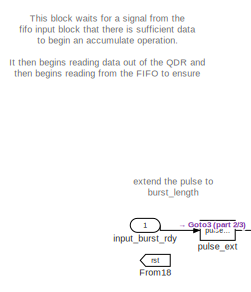
[diagram: qdr_vacc/acc_ctrl - part 1/3, top left region]
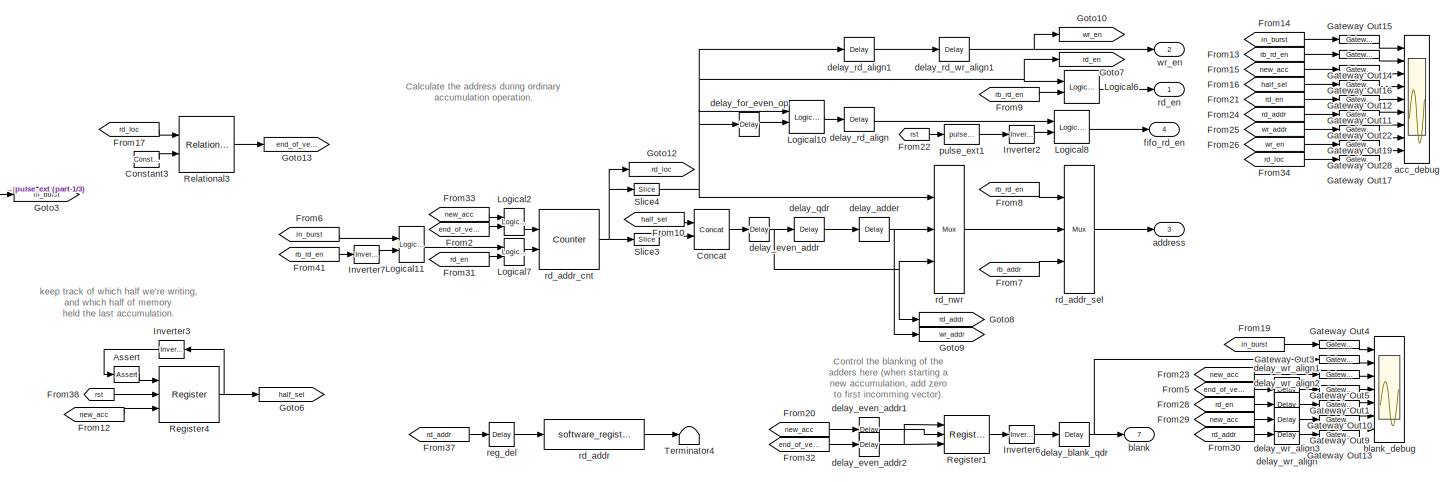
[diagram: qdr_vacc/acc_ctrl - part 2/3, full width, top band]
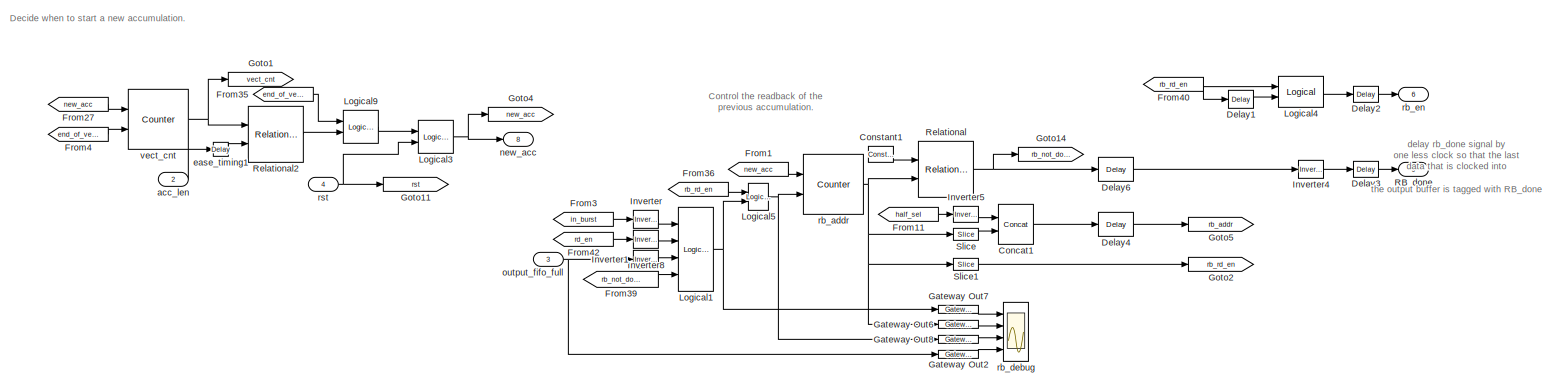
[diagram: qdr_vacc/acc_ctrl - part 3/3, full width, bottom band]
BLOCK [SubSystem] qdr_vacc/acc_ctrl
  Ports = [4, 8]
  RequestExecContextInheritance = off
BLOCK [Reference] qdr_vacc/acc_ctrl/Assert  REF=xbsIndex_r4/Assert
  Ports = [1, 1]
  SourceBlock = xbsIndex_r4/Assert
  SourceType = Xilinx Assert Block
BLOCK [Reference] qdr_vacc/acc_ctrl/Concat  REF=xbsIndex_r4/Concat
  Ports = [2, 1]
  SourceBlock = xbsIndex_r4/Concat
  SourceType = Xilinx Bus Concatenator Block
BLOCK [Reference] qdr_vacc/acc_ctrl/Concat1  REF=xbsIndex_r4/Concat
  Ports = [2, 1]
  SourceBlock = xbsIndex_r4/Concat
  SourceType = Xilinx Bus Concatenator Block
BLOCK [Reference] qdr_vacc/acc_ctrl/Constant1  REF=xbsIndex_r4/Constant
  Ports = [0, 1]
  SourceBlock = xbsIndex_r4/Constant
  SourceType = Xilinx Constant Block Block
BLOCK [Reference] qdr_vacc/acc_ctrl/Constant3  REF=xbsIndex_r4/Constant
  Ports = [0, 1]
  SourceBlock = xbsIndex_r4/Constant
  SourceType = Xilinx Constant Block Block
BLOCK [Reference] qdr_vacc/acc_ctrl/Delay1  REF=xbsIndex_r4/Delay
  Ports = [1, 1]
  SourceBlock = xbsIndex_r4/Delay
  SourceType = Xilinx Delay Block
BLOCK [Reference] qdr_vacc/acc_ctrl/Delay2  REF=xbsIndex_r4/Delay
  Ports = [1, 1]
  SourceBlock = xbsIndex_r4/Delay
  SourceType = Xilinx Delay Block
BLOCK [Reference] qdr_vacc/acc_ctrl/Delay3  REF=xbsIndex_r4/Delay
  Ports = [1, 1]
  SourceBlock = xbsIndex_r4/Delay
  SourceType = Xilinx Delay Block
BLOCK [Reference] qdr_vacc/acc_ctrl/Delay4  REF=xbsIndex_r4/Delay
  Ports = [1, 1]
  SourceBlock = xbsIndex_r4/Delay
  SourceType = Xilinx Delay Block
BLOCK [Reference] qdr_vacc/acc_ctrl/Delay6  REF=xbsIndex_r4/Delay
  Ports = [1, 1]
  SourceBlock = xbsIndex_r4/Delay
  SourceType = Xilinx Delay Block
BLOCK [From] qdr_vacc/acc_ctrl/From1
  CloseFcn = tagdialog Close
  GotoTag = new_acc
BLOCK [From] qdr_vacc/acc_ctrl/From10
  CloseFcn = tagdialog Close
  GotoTag = half_sel
BLOCK [From] qdr_vacc/acc_ctrl/From11
  CloseFcn = tagdialog Close
  GotoTag = half_sel
BLOCK [From] qdr_vacc/acc_ctrl/From12
  CloseFcn = tagdialog Close
  GotoTag = new_acc
BLOCK [From] qdr_vacc/acc_ctrl/From13
  CloseFcn = tagdialog Close
  GotoTag = rb_rd_en
BLOCK [From] qdr_vacc/acc_ctrl/From14
  CloseFcn = tagdialog Close
  GotoTag = in_burst
BLOCK [From] qdr_vacc/acc_ctrl/From15
  CloseFcn = tagdialog Close
  GotoTag = new_acc
BLOCK [From] qdr_vacc/acc_ctrl/From16
  CloseFcn = tagdialog Close
  GotoTag = half_sel
BLOCK [From] qdr_vacc/acc_ctrl/From17
  CloseFcn = tagdialog Close
  GotoTag = rd_loc
BLOCK [From] qdr_vacc/acc_ctrl/From18
  CloseFcn = tagdialog Close
  GotoTag = rst
BLOCK [From] qdr_vacc/acc_ctrl/From19
  CloseFcn = tagdialog Close
  GotoTag = in_burst
BLOCK [From] qdr_vacc/acc_ctrl/From2
  CloseFcn = tagdialog Close
  GotoTag = end_of_vector
BLOCK [From] qdr_vacc/acc_ctrl/From20
  CloseFcn = tagdialog Close
  GotoTag = new_acc
BLOCK [From] qdr_vacc/acc_ctrl/From21
  CloseFcn = tagdialog Close
  GotoTag = rd_en
BLOCK [From] qdr_vacc/acc_ctrl/From22
  CloseFcn = tagdialog Close
  GotoTag = rst
BLOCK [From] qdr_vacc/acc_ctrl/From23
  CloseFcn = tagdialog Close
  GotoTag = new_acc
BLOCK [From] qdr_vacc/acc_ctrl/From24
  CloseFcn = tagdialog Close
  GotoTag = rd_addr
BLOCK [From] qdr_vacc/acc_ctrl/From25
  CloseFcn = tagdialog Close
  GotoTag = wr_addr
BLOCK [From] qdr_vacc/acc_ctrl/From26
  CloseFcn = tagdialog Close
  GotoTag = wr_en
BLOCK [From] qdr_vacc/acc_ctrl/From27
  CloseFcn = tagdialog Close
  GotoTag = new_acc
BLOCK [From] qdr_vacc/acc_ctrl/From28
  CloseFcn = tagdialog Close
  GotoTag = rd_en
BLOCK [From] qdr_vacc/acc_ctrl/From29
  CloseFcn = tagdialog Close
  GotoTag = new_acc
BLOCK [From] qdr_vacc/acc_ctrl/From3
  CloseFcn = tagdialog Close
  GotoTag = in_burst
BLOCK [From] qdr_vacc/acc_ctrl/From30
  CloseFcn = tagdialog Close
  GotoTag = rd_addr
BLOCK [From] qdr_vacc/acc_ctrl/From31
  CloseFcn = tagdialog Close
  GotoTag = rd_en
BLOCK [From] qdr_vacc/acc_ctrl/From32
  CloseFcn = tagdialog Close
  GotoTag = end_of_vector
BLOCK [From] qdr_vacc/acc_ctrl/From33
  CloseFcn = tagdialog Close
  GotoTag = new_acc
BLOCK [From] qdr_vacc/acc_ctrl/From34
  CloseFcn = tagdialog Close
  GotoTag = rd_loc
BLOCK [From] qdr_vacc/acc_ctrl/From35
  CloseFcn = tagdialog Close
  GotoTag = end_of_vector
BLOCK [From] qdr_vacc/acc_ctrl/From36
  CloseFcn = tagdialog Close
  GotoTag = rb_rd_en
BLOCK [From] qdr_vacc/acc_ctrl/From37
  CloseFcn = tagdialog Close
  GotoTag = rd_addr
BLOCK [From] qdr_vacc/acc_ctrl/From38
  CloseFcn = tagdialog Close
  GotoTag = rst
BLOCK [From] qdr_vacc/acc_ctrl/From39
  CloseFcn = tagdialog Close
  GotoTag = rb_not_done
BLOCK [From] qdr_vacc/acc_ctrl/From4
  CloseFcn = tagdialog Close
  GotoTag = end_of_vector
BLOCK [From] qdr_vacc/acc_ctrl/From40
  CloseFcn = tagdialog Close
  GotoTag = rb_rd_en
BLOCK [From] qdr_vacc/acc_ctrl/From41
  CloseFcn = tagdialog Close
  GotoTag = rb_rd_en
BLOCK [From] qdr_vacc/acc_ctrl/From42
  CloseFcn = tagdialog Close
  GotoTag = rd_en
BLOCK [From] qdr_vacc/acc_ctrl/From5
  CloseFcn = tagdialog Close
  GotoTag = end_of_vector
BLOCK [From] qdr_vacc/acc_ctrl/From6
  CloseFcn = tagdialog Close
  GotoTag = in_burst
BLOCK [From] qdr_vacc/acc_ctrl/From7
  CloseFcn = tagdialog Close
  GotoTag = rb_addr
BLOCK [From] qdr_vacc/acc_ctrl/From8
  CloseFcn = tagdialog Close
  GotoTag = rb_rd_en
BLOCK [From] qdr_vacc/acc_ctrl/From9
  CloseFcn = tagdialog Close
  GotoTag = rb_rd_en
BLOCK [Reference] qdr_vacc/acc_ctrl/Gateway Out1  REF=xbsIndex_r4/Gateway Out
  Ports = [1, 1]
  SourceBlock = xbsIndex_r4/Gateway Out
  SourceType = Xilinx Gateway Out Block
BLOCK [Reference] qdr_vacc/acc_ctrl/Gateway Out10  REF=xbsIndex_r4/Gateway Out
  Ports = [1, 1]
  SourceBlock = xbsIndex_r4/Gateway Out
  SourceType = Xilinx Gateway Out Block
BLOCK [Reference] qdr_vacc/acc_ctrl/Gateway Out11  REF=xbsIndex_r4/Gateway Out
  Ports = [1, 1]
  SourceBlock = xbsIndex_r4/Gateway Out
  SourceType = Xilinx Gateway Out Block
BLOCK [Reference] qdr_vacc/acc_ctrl/Gateway Out12  REF=xbsIndex_r4/Gateway Out
  Ports = [1, 1]
  SourceBlock = xbsIndex_r4/Gateway Out
  SourceType = Xilinx Gateway Out Block
BLOCK [Reference] qdr_vacc/acc_ctrl/Gateway Out13  REF=xbsIndex_r4/Gateway Out
  Ports = [1, 1]
  SourceBlock = xbsIndex_r4/Gateway Out
  SourceType = Xilinx Gateway Out Block
BLOCK [Reference] qdr_vacc/acc_ctrl/Gateway Out14  REF=xbsIndex_r4/Gateway Out
  Ports = [1, 1]
  SourceBlock = xbsIndex_r4/Gateway Out
  SourceType = Xilinx Gateway Out Block
BLOCK [Reference] qdr_vacc/acc_ctrl/Gateway Out15  REF=xbsIndex_r4/Gateway Out
  Ports = [1, 1]
  SourceBlock = xbsIndex_r4/Gateway Out
  SourceType = Xilinx Gateway Out Block
BLOCK [Reference] qdr_vacc/acc_ctrl/Gateway Out16  REF=xbsIndex_r4/Gateway Out
  Ports = [1, 1]
  SourceBlock = xbsIndex_r4/Gateway Out
  SourceType = Xilinx Gateway Out Block
BLOCK [Reference] qdr_vacc/acc_ctrl/Gateway Out17  REF=xbsIndex_r4/Gateway Out
  Ports = [1, 1]
  SourceBlock = xbsIndex_r4/Gateway Out
  SourceType = Xilinx Gateway Out Block
BLOCK [Reference] qdr_vacc/acc_ctrl/Gateway Out19  REF=xbsIndex_r4/Gateway Out
  Ports = [1, 1]
  SourceBlock = xbsIndex_r4/Gateway Out
  SourceType = Xilinx Gateway Out Block
BLOCK [Reference] qdr_vacc/acc_ctrl/Gateway Out2  REF=xbsIndex_r4/Gateway Out
  Ports = [1, 1]
  SourceBlock = xbsIndex_r4/Gateway Out
  SourceType = Xilinx Gateway Out Block
BLOCK [Reference] qdr_vacc/acc_ctrl/Gateway Out22  REF=xbsIndex_r4/Gateway Out
  Ports = [1, 1]
  SourceBlock = xbsIndex_r4/Gateway Out
  SourceType = Xilinx Gateway Out Block
BLOCK [Reference] qdr_vacc/acc_ctrl/Gateway Out28  REF=xbsIndex_r4/Gateway Out
  Ports = [1, 1]
  SourceBlock = xbsIndex_r4/Gateway Out
  SourceType = Xilinx Gateway Out Block
BLOCK [Reference] qdr_vacc/acc_ctrl/Gateway Out3  REF=xbsIndex_r4/Gateway Out
  Ports = [1, 1]
  SourceBlock = xbsIndex_r4/Gateway Out
  SourceType = Xilinx Gateway Out Block
BLOCK [Reference] qdr_vacc/acc_ctrl/Gateway Out4  REF=xbsIndex_r4/Gateway Out
  Ports = [1, 1]
  SourceBlock = xbsIndex_r4/Gateway Out
  SourceType = Xilinx Gateway Out Block
BLOCK [Reference] qdr_vacc/acc_ctrl/Gateway Out5  REF=xbsIndex_r4/Gateway Out
  Ports = [1, 1]
  SourceBlock = xbsIndex_r4/Gateway Out
  SourceType = Xilinx Gateway Out Block
BLOCK [Reference] qdr_vacc/acc_ctrl/Gateway Out6  REF=xbsIndex_r4/Gateway Out
  Ports = [1, 1]
  SourceBlock = xbsIndex_r4/Gateway Out
  SourceType = Xilinx Gateway Out Block
BLOCK [Reference] qdr_vacc/acc_ctrl/Gateway Out7  REF=xbsIndex_r4/Gateway Out
  Ports = [1, 1]
  SourceBlock = xbsIndex_r4/Gateway Out
  SourceType = Xilinx Gateway Out Block
BLOCK [Reference] qdr_vacc/acc_ctrl/Gateway Out8  REF=xbsIndex_r4/Gateway Out
  Ports = [1, 1]
  SourceBlock = xbsIndex_r4/Gateway Out
  SourceType = Xilinx Gateway Out Block
BLOCK [Reference] qdr_vacc/acc_ctrl/Gateway Out9  REF=xbsIndex_r4/Gateway Out
  Ports = [1, 1]
  SourceBlock = xbsIndex_r4/Gateway Out
  SourceType = Xilinx Gateway Out Block
BLOCK [Goto] qdr_vacc/acc_ctrl/Goto1
  GotoTag = vect_cnt
BLOCK [Goto] qdr_vacc/acc_ctrl/Goto10
  GotoTag = wr_en
BLOCK [Goto] qdr_vacc/acc_ctrl/Goto11
  GotoTag = rst
BLOCK [Goto] qdr_vacc/acc_ctrl/Goto12
  GotoTag = rd_loc
BLOCK [Goto] qdr_vacc/acc_ctrl/Goto13
  GotoTag = end_of_vector
BLOCK [Goto] qdr_vacc/acc_ctrl/Goto14
  GotoTag = rb_not_done
BLOCK [Goto] qdr_vacc/acc_ctrl/Goto2
  GotoTag = rb_rd_en
BLOCK [Goto] qdr_vacc/acc_ctrl/Goto3
  GotoTag = in_burst
BLOCK [Goto] qdr_vacc/acc_ctrl/Goto4
  GotoTag = new_acc
BLOCK [Goto] qdr_vacc/acc_ctrl/Goto5
  GotoTag = rb_addr
BLOCK [Goto] qdr_vacc/acc_ctrl/Goto6
  GotoTag = half_sel
BLOCK [Goto] qdr_vacc/acc_ctrl/Goto7
  GotoTag = rd_en
BLOCK [Goto] qdr_vacc/acc_ctrl/Goto8
  GotoTag = rd_addr
BLOCK [Goto] qdr_vacc/acc_ctrl/Goto9
  GotoTag = wr_addr
BLOCK [Reference] qdr_vacc/acc_ctrl/Inverter  REF=xbsIndex_r4/Inverter
  Ports = [1, 1]
  SourceBlock = xbsIndex_r4/Inverter
  SourceType = Xilinx Inverter Block
BLOCK [Reference] qdr_vacc/acc_ctrl/Inverter1  REF=xbsIndex_r4/Inverter
  Ports = [1, 1]
  SourceBlock = xbsIndex_r4/Inverter
  SourceType = Xilinx Inverter Block
BLOCK [Reference] qdr_vacc/acc_ctrl/Inverter2  REF=xbsIndex_r4/Inverter
  Ports = [1, 1]
  SourceBlock = xbsIndex_r4/Inverter
  SourceType = Xilinx Inverter Block
BLOCK [Reference] qdr_vacc/acc_ctrl/Inverter3  REF=xbsIndex_r4/Inverter
  Ports = [1, 1]
  SourceBlock = xbsIndex_r4/Inverter
  SourceType = Xilinx Inverter Block
BLOCK [Reference] qdr_vacc/acc_ctrl/Inverter4  REF=xbsIndex_r4/Inverter
  Ports = [1, 1]
  SourceBlock = xbsIndex_r4/Inverter
  SourceType = Xilinx Inverter Block
BLOCK [Reference] qdr_vacc/acc_ctrl/Inverter5  REF=xbsIndex_r4/Inverter
  Ports = [1, 1]
  SourceBlock = xbsIndex_r4/Inverter
  SourceType = Xilinx Inverter Block
BLOCK [Reference] qdr_vacc/acc_ctrl/Inverter6  REF=xbsIndex_r4/Inverter
  Ports = [1, 1]
  SourceBlock = xbsIndex_r4/Inverter
  SourceType = Xilinx Inverter Block
BLOCK [Reference] qdr_vacc/acc_ctrl/Inverter7  REF=xbsIndex_r4/Inverter
  Ports = [1, 1]
  SourceBlock = xbsIndex_r4/Inverter
  SourceType = Xilinx Inverter Block
BLOCK [Reference] qdr_vacc/acc_ctrl/Inverter8  REF=xbsIndex_r4/Inverter
  Ports = [1, 1]
  SourceBlock = xbsIndex_r4/Inverter
  SourceType = Xilinx Inverter Block
BLOCK [Reference] qdr_vacc/acc_ctrl/Logical1  REF=xbsIndex_r4/Logical
  Ports = [4, 1]
  SourceBlock = xbsIndex_r4/Logical
  SourceType = Xilinx Logical Block Block
BLOCK [Reference] qdr_vacc/acc_ctrl/Logical10  REF=xbsIndex_r4/Logical
  Ports = [2, 1]
  SourceBlock = xbsIndex_r4/Logical
  SourceType = Xilinx Logical Block Block
BLOCK [Reference] qdr_vacc/acc_ctrl/Logical11  REF=xbsIndex_r4/Logical
  Ports = [2, 1]
  SourceBlock = xbsIndex_r4/Logical
  SourceType = Xilinx Logical Block Block
BLOCK [Reference] qdr_vacc/acc_ctrl/Logical2  REF=xbsIndex_r4/Logical
  Ports = [2, 1]
  SourceBlock = xbsIndex_r4/Logical
  SourceType = Xilinx Logical Block Block
BLOCK [Reference] qdr_vacc/acc_ctrl/Logical3  REF=xbsIndex_r4/Logical
  Ports = [2, 1]
  SourceBlock = xbsIndex_r4/Logical
  SourceType = Xilinx Logical Block Block
BLOCK [Reference] qdr_vacc/acc_ctrl/Logical4  REF=xbsIndex_r4/Logical
  Ports = [2, 1]
  SourceBlock = xbsIndex_r4/Logical
  SourceType = Xilinx Logical Block Block
BLOCK [Reference] qdr_vacc/acc_ctrl/Logical5  REF=xbsIndex_r4/Logical
  Ports = [2, 1]
  SourceBlock = xbsIndex_r4/Logical
  SourceType = Xilinx Logical Block Block
BLOCK [Reference] qdr_vacc/acc_ctrl/Logical6  REF=xbsIndex_r4/Logical
  Ports = [2, 1]
  SourceBlock = xbsIndex_r4/Logical
  SourceType = Xilinx Logical Block Block
BLOCK [Reference] qdr_vacc/acc_ctrl/Logical7  REF=xbsIndex_r4/Logical
  Ports = [2, 1]
  SourceBlock = xbsIndex_r4/Logical
  SourceType = Xilinx Logical Block Block
BLOCK [Reference] qdr_vacc/acc_ctrl/Logical8  REF=xbsIndex_r4/Logical
  Ports = [2, 1]
  SourceBlock = xbsIndex_r4/Logical
  SourceType = Xilinx Logical Block Block
BLOCK [Reference] qdr_vacc/acc_ctrl/Logical9  REF=xbsIndex_r4/Logical
  Ports = [2, 1]
  SourceBlock = xbsIndex_r4/Logical
  SourceType = Xilinx Logical Block Block
BLOCK [Outport] qdr_vacc/acc_ctrl/RB_done
  Port = 5
  VectorParamsAs1DForOutWhenUnconnected = off
BLOCK [Reference] qdr_vacc/acc_ctrl/Register1  REF=xbsIndex_r4/Register
  Ports = [3, 1]
  SourceBlock = xbsIndex_r4/Register
  SourceType = Xilinx Register Block
BLOCK [Reference] qdr_vacc/acc_ctrl/Register4  REF=xbsIndex_r4/Register
  Ports = [3, 1]
  SourceBlock = xbsIndex_r4/Register
  SourceType = Xilinx Register Block
BLOCK [Reference] qdr_vacc/acc_ctrl/Relational  REF=xbsIndex_r4/Relational
  Ports = [2, 1]
  SourceBlock = xbsIndex_r4/Relational
  SourceType = Xilinx Arithmetic Relational Operator Block
BLOCK [Reference] qdr_vacc/acc_ctrl/Relational2  REF=xbsIndex_r4/Relational
  Ports = [2, 1]
  SourceBlock = xbsIndex_r4/Relational
  SourceType = Xilinx Arithmetic Relational Operator Block
BLOCK [Reference] qdr_vacc/acc_ctrl/Relational3  REF=xbsIndex_r4/Relational
  Ports = [2, 1]
  SourceBlock = xbsIndex_r4/Relational
  SourceType = Xilinx Arithmetic Relational Operator Block
BLOCK [Reference] qdr_vacc/acc_ctrl/Slice  REF=xbsIndex_r4/Slice
  Ports = [1, 1]
  SourceBlock = xbsIndex_r4/Slice
  SourceType = Xilinx Bit Slice Extractor Block
BLOCK [Reference] qdr_vacc/acc_ctrl/Slice1  REF=xbsIndex_r4/Slice
  Ports = [1, 1]
  SourceBlock = xbsIndex_r4/Slice
  SourceType = Xilinx Bit Slice Extractor Block
BLOCK [Reference] qdr_vacc/acc_ctrl/Slice3  REF=xbsIndex_r4/Slice
  Ports = [1, 1]
  SourceBlock = xbsIndex_r4/Slice
  SourceType = Xilinx Bit Slice Extractor Block
BLOCK [Reference] qdr_vacc/acc_ctrl/Slice4  REF=xbsIndex_r4/Slice
  Ports = [1, 1]
  SourceBlock = xbsIndex_r4/Slice
  SourceType = Xilinx Bit Slice Extractor Block
BLOCK [Terminator] qdr_vacc/acc_ctrl/Terminator4
BLOCK [Scope] qdr_vacc/acc_ctrl/acc_debug
  Floating = off
  NumInputPorts = 9
  Ports = [9]
  ScopeSpecificationString = Simulink.scopes.TimeScopeBlockCfg('CurrentConfiguration', extmgr.ConfigurationSet(extmgr.Configuration('Core','General UI',true),extmgr.Configuration('Core','Source UI',true),extmgr.Configuration('Sources','WiredSimulink',true,'DataLoggingVariableName','ScopeData5','DataLoggingSaveFormat','StructureWithTime','DataLoggingDecimation','1','DataLoggingDecimateData',true),extmgr.Configuration('Visuals'...<+7042ch>
BLOCK [Inport] qdr_vacc/acc_ctrl/acc_len
  Port = 2
BLOCK [Outport] qdr_vacc/acc_ctrl/address
  Port = 3
  VectorParamsAs1DForOutWhenUnconnected = off
BLOCK [Outport] qdr_vacc/acc_ctrl/blank
  Port = 7
  VectorParamsAs1DForOutWhenUnconnected = off
BLOCK [Scope] qdr_vacc/acc_ctrl/blank_debug
  Floating = off
  NumInputPorts = 7
  Ports = [7]
  ScopeSpecificationString = Simulink.scopes.TimeScopeBlockCfg('CurrentConfiguration', extmgr.ConfigurationSet(extmgr.Configuration('Core','General UI',true),extmgr.Configuration('Core','Source UI',true),extmgr.Configuration('Sources','WiredSimulink',true,'DataLoggingVariableName','ScopeData6','DataLoggingSaveFormat','StructureWithTime','DataLoggingDecimation','1','DataLoggingDecimateData',true),extmgr.Configuration('Visuals'...<+5726ch>
BLOCK [Reference] qdr_vacc/acc_ctrl/delay_adder  REF=xbsIndex_r4/Delay
  Ports = [1, 1]
  SourceBlock = xbsIndex_r4/Delay
  SourceType = Xilinx Delay Block
BLOCK [Reference] qdr_vacc/acc_ctrl/delay_blank_qdr  REF=xbsIndex_r4/Delay
  Ports = [1, 1]
  SourceBlock = xbsIndex_r4/Delay
  SourceType = Xilinx Delay Block
BLOCK [Reference] qdr_vacc/acc_ctrl/delay_even_addr  REF=xbsIndex_r4/Delay
  Ports = [1, 1]
  SourceBlock = xbsIndex_r4/Delay
  SourceType = Xilinx Delay Block
BLOCK [Reference] qdr_vacc/acc_ctrl/delay_even_addr1  REF=xbsIndex_r4/Delay
  Ports = [1, 1]
  SourceBlock = xbsIndex_r4/Delay
  SourceType = Xilinx Delay Block
BLOCK [Reference] qdr_vacc/acc_ctrl/delay_even_addr2  REF=xbsIndex_r4/Delay
  Ports = [1, 1]
  SourceBlock = xbsIndex_r4/Delay
  SourceType = Xilinx Delay Block
BLOCK [Reference] qdr_vacc/acc_ctrl/delay_for_even_op  REF=xbsIndex_r4/Delay
  Ports = [1, 1]
  SourceBlock = xbsIndex_r4/Delay
  SourceType = Xilinx Delay Block
BLOCK [Reference] qdr_vacc/acc_ctrl/delay_qdr  REF=xbsIndex_r4/Delay
  Ports = [1, 1]
  SourceBlock = xbsIndex_r4/Delay
  SourceType = Xilinx Delay Block
BLOCK [Reference] qdr_vacc/acc_ctrl/delay_rd_align  REF=xbsIndex_r4/Delay
  Ports = [1, 1]
  SourceBlock = xbsIndex_r4/Delay
  SourceType = Xilinx Delay Block
BLOCK [Reference] qdr_vacc/acc_ctrl/delay_rd_align1  REF=xbsIndex_r4/Delay
  Ports = [1, 1]
  SourceBlock = xbsIndex_r4/Delay
  SourceType = Xilinx Delay Block
BLOCK [Reference] qdr_vacc/acc_ctrl/delay_rd_wr_align1  REF=xbsIndex_r4/Delay
  Ports = [1, 1]
  SourceBlock = xbsIndex_r4/Delay
  SourceType = Xilinx Delay Block
BLOCK [Reference] qdr_vacc/acc_ctrl/delay_wr_align  REF=xbsIndex_r4/Delay
  Ports = [1, 1]
  SourceBlock = xbsIndex_r4/Delay
  SourceType = Xilinx Delay Block
BLOCK [Reference] qdr_vacc/acc_ctrl/delay_wr_align1  REF=xbsIndex_r4/Delay
  Ports = [1, 1]
  SourceBlock = xbsIndex_r4/Delay
  SourceType = Xilinx Delay Block
BLOCK [Reference] qdr_vacc/acc_ctrl/delay_wr_align2  REF=xbsIndex_r4/Delay
  Ports = [1, 1]
  SourceBlock = xbsIndex_r4/Delay
  SourceType = Xilinx Delay Block
BLOCK [Reference] qdr_vacc/acc_ctrl/delay_wr_align3  REF=xbsIndex_r4/Delay
  Ports = [1, 1]
  SourceBlock = xbsIndex_r4/Delay
  SourceType = Xilinx Delay Block
BLOCK [Reference] qdr_vacc/acc_ctrl/ease_timing1  REF=xbsIndex_r4/Delay
  Ports = [1, 1]
  SourceBlock = xbsIndex_r4/Delay
  SourceType = Xilinx Delay Block
BLOCK [Outport] qdr_vacc/acc_ctrl/fifo_rd_en
  Port = 4
  VectorParamsAs1DForOutWhenUnconnected = off
BLOCK [Inport] qdr_vacc/acc_ctrl/input_burst_rdy
BLOCK [Outport] qdr_vacc/acc_ctrl/new_acc
  Port = 8
  VectorParamsAs1DForOutWhenUnconnected = off
BLOCK [Inport] qdr_vacc/acc_ctrl/output_fifo_full
  Port = 3
BLOCK [Reference] qdr_vacc/acc_ctrl/pulse_ext  REF=casper_library_misc/pulse_ext  (lib defined in mdl_357510c33b49, mdl_57b5f564ae26, +4 more)
  Ports = [1, 1]
  SourceBlock = casper_library_misc/pulse_ext
  SourceProductName = CASPER DSP Blockset
  SourceType = pulse_ext
BLOCK [Reference] qdr_vacc/acc_ctrl/pulse_ext1  REF=casper_library_misc/pulse_ext  (lib defined in mdl_357510c33b49, mdl_57b5f564ae26, +4 more)
  Ports = [1, 1]
  SourceBlock = casper_library_misc/pulse_ext
  SourceProductName = CASPER DSP Blockset
  SourceType = pulse_ext
BLOCK [Reference] qdr_vacc/acc_ctrl/rb_addr  REF=xbsIndex_r4/Counter
  Ports = [2, 1]
  SourceBlock = xbsIndex_r4/Counter
  SourceType = Xilinx Counter Block
BLOCK [Scope] qdr_vacc/acc_ctrl/rb_debug
  Floating = off
  NumInputPorts = 4
  Ports = [4]
  ScopeSpecificationString = Simulink.scopes.TimeScopeBlockCfg('CurrentConfiguration', extmgr.ConfigurationSet(extmgr.Configuration('Core','General UI',true),extmgr.Configuration('Core','Source UI',true),extmgr.Configuration('Sources','WiredSimulink',true,'DataLoggingVariableName','ScopeData5','DataLoggingSaveFormat','StructureWithTime','DataLoggingDecimation','1','DataLoggingDecimateData',true),extmgr.Configuration('Visuals'...<+3669ch>
BLOCK [Outport] qdr_vacc/acc_ctrl/rb_en
  Port = 6
  VectorParamsAs1DForOutWhenUnconnected = off
BLOCK [Reference] qdr_vacc/acc_ctrl/rd_addr  REF=xps_library/Memory/software_register  (lib defined in mdl_00b5cec29cd0, mdl_02ab6ecaa3d1, +5 more)
  AttributesFormatString = 1output:uf32.0 = 32 bits
  Ports = [1, 1]
  SourceBlock = xps_library/Memory/software_register
  SourceProductName = CASPER XPS Blockset
  SourceType = swreg
  Tag = xps:sw_reg
BLOCK [Reference] qdr_vacc/acc_ctrl/rd_addr_cnt  REF=xbsIndex_r4/Counter
  Ports = [2, 1]
  SourceBlock = xbsIndex_r4/Counter
  SourceType = Xilinx Counter Block
BLOCK [Reference] qdr_vacc/acc_ctrl/rd_addr_sel  REF=xbsIndex_r4/Mux
  Ports = [3, 1]
  SourceBlock = xbsIndex_r4/Mux
  SourceType = Xilinx Bus Multiplexer Block
BLOCK [Outport] qdr_vacc/acc_ctrl/rd_en
  VectorParamsAs1DForOutWhenUnconnected = off
BLOCK [Reference] qdr_vacc/acc_ctrl/rd_nwr  REF=xbsIndex_r4/Mux
  Ports = [3, 1]
  SourceBlock = xbsIndex_r4/Mux
  SourceType = Xilinx Bus Multiplexer Block
BLOCK [Reference] qdr_vacc/acc_ctrl/reg_del  REF=xbsIndex_r4/Delay
  Ports = [1, 1]
  SourceBlock = xbsIndex_r4/Delay
  SourceType = Xilinx Delay Block
BLOCK [Inport] qdr_vacc/acc_ctrl/rst
  Port = 4
BLOCK [Reference] qdr_vacc/acc_ctrl/vect_cnt  REF=xbsIndex_r4/Counter
  Ports = [2, 1]
  SourceBlock = xbsIndex_r4/Counter
  SourceType = Xilinx Counter Block
BLOCK [Outport] qdr_vacc/acc_ctrl/wr_en
  Port = 2
  VectorParamsAs1DForOutWhenUnconnected = off
BLOCK [Scope] qdr_vacc/acc_debug
  Floating = off
  NumInputPorts = 10
  Ports = [10]
  ScopeSpecificationString = Simulink.scopes.TimeScopeBlockCfg('CurrentConfiguration', extmgr.ConfigurationSet(extmgr.Configuration('Core','General UI',true),extmgr.Configuration('Core','Source UI',true),extmgr.Configuration('Sources','WiredSimulink',true,'DataLoggingVariableName','ScopeData4','DataLoggingSaveFormat','StructureWithTime','DataLoggingDecimation','1','DataLoggingDecimateData',true),extmgr.Configuration('Visuals'...<+7736ch>
BLOCK [Inport] qdr_vacc/data_in
  Port = 3
BLOCK [Outport] qdr_vacc/data_out
  Port = 2
  VectorParamsAs1DForOutWhenUnconnected = off
BLOCK [Reference] qdr_vacc/delay  REF=xbsIndex_r4/Delay
  Ports = [1, 1]
  SourceBlock = xbsIndex_r4/Delay
  SourceType = Xilinx Delay Block
BLOCK [Reference] qdr_vacc/delay1  REF=xbsIndex_r4/Delay
  Ports = [1, 1]
  SourceBlock = xbsIndex_r4/Delay
  SourceType = Xilinx Delay Block
BLOCK [Reference] qdr_vacc/delay2  REF=xbsIndex_r4/Delay
  Ports = [1, 1]
  SourceBlock = xbsIndex_r4/Delay
  SourceType = Xilinx Delay Block
BLOCK [Outport] qdr_vacc/error
  Port = 5
  VectorParamsAs1DForOutWhenUnconnected = off
BLOCK [Outport] qdr_vacc/fifo_afull
  Port = 7
  VectorParamsAs1DForOutWhenUnconnected = off
BLOCK [Reference] qdr_vacc/fifo_in  REF=xbsIndex_r4/FIFO
  Ports = [4, 4]
  SourceBlock = xbsIndex_r4/FIFO
  SourceType = Xilinx FIFO Block Block
BLOCK [Reference] qdr_vacc/fifo_out  REF=xbsIndex_r4/FIFO
  Ports = [4, 4]
  SourceBlock = xbsIndex_r4/FIFO
  SourceType = Xilinx FIFO Block Block
BLOCK [Scope] qdr_vacc/in_buf_debug
  Floating = off
  NumInputPorts = 5
  Ports = [5]
  ScopeSpecificationString = Simulink.scopes.TimeScopeBlockCfg('CurrentConfiguration', extmgr.ConfigurationSet(extmgr.Configuration('Core','General UI',true),extmgr.Configuration('Core','Source UI',true),extmgr.Configuration('Sources','WiredSimulink',true,'DataLoggingVariableName','ScopeData2','DataLoggingSaveFormat','StructureWithTime','DataLoggingDecimation','1','DataLoggingDecimateData',true),extmgr.Configuration('Visuals'...<+4294ch>
BLOCK [Scope] qdr_vacc/input_debug
  Floating = off
  NumInputPorts = 4
  Ports = [4]
  ScopeSpecificationString = Simulink.scopes.TimeScopeBlockCfg('CurrentConfiguration', extmgr.ConfigurationSet(extmgr.Configuration('Core','General UI',true),extmgr.Configuration('Core','Source UI',true),extmgr.Configuration('Sources','WiredSimulink',true,'DataLoggingVariableName','ScopeData1','DataLoggingSaveFormat','StructureWithTime','DataLoggingDecimation','1','DataLoggingDecimateData',true),extmgr.Configuration('Visuals'...<+3633ch>
BLOCK [Reference] qdr_vacc/make_odd_delay  REF=xbsIndex_r4/Delay
  Ports = [1, 1]
  SourceBlock = xbsIndex_r4/Delay
  SourceType = Xilinx Delay Block
BLOCK [Reference] qdr_vacc/make_odd_delay1  REF=xbsIndex_r4/Delay
  Ports = [1, 1]
  SourceBlock = xbsIndex_r4/Delay
  SourceType = Xilinx Delay Block
BLOCK [Inport] qdr_vacc/n_acum
BLOCK [Reference] qdr_vacc/negedge_delay  REF=casper_library_misc/negedge_delay  (lib defined in mdl_357510c33b49, mdl_57b5f564ae26, +4 more)
  Ports = [1, 1]
  SourceBlock = casper_library_misc/negedge_delay
  SourceProductName = CASPER DSP Blockset
  SourceType = negedge_delay
BLOCK [Reference] qdr_vacc/negedge_delay1  REF=casper_library_misc/negedge_delay  (lib defined in mdl_357510c33b49, mdl_57b5f564ae26, +4 more)
  Ports = [1, 1]
  SourceBlock = casper_library_misc/negedge_delay
  SourceProductName = CASPER DSP Blockset
  SourceType = negedge_delay
BLOCK [Reference] qdr_vacc/negedge_delay10  REF=casper_library_misc/negedge_delay  (lib defined in mdl_357510c33b49, mdl_57b5f564ae26, +4 more)
  Ports = [1, 1]
  SourceBlock = casper_library_misc/negedge_delay
  SourceProductName = CASPER DSP Blockset
  SourceType = negedge_delay
BLOCK [Reference] qdr_vacc/negedge_delay11  REF=casper_library_misc/negedge_delay  (lib defined in mdl_357510c33b49, mdl_57b5f564ae26, +4 more)
  Ports = [1, 1]
  SourceBlock = casper_library_misc/negedge_delay
  SourceProductName = CASPER DSP Blockset
  SourceType = negedge_delay
BLOCK [Reference] qdr_vacc/negedge_delay12  REF=casper_library_misc/negedge_delay  (lib defined in mdl_357510c33b49, mdl_57b5f564ae26, +4 more)
  Ports = [1, 1]
  SourceBlock = casper_library_misc/negedge_delay
  SourceProductName = CASPER DSP Blockset
  SourceType = negedge_delay
BLOCK [Reference] qdr_vacc/negedge_delay13  REF=casper_library_misc/negedge_delay  (lib defined in mdl_357510c33b49, mdl_57b5f564ae26, +4 more)
  Ports = [1, 1]
  SourceBlock = casper_library_misc/negedge_delay
  SourceProductName = CASPER DSP Blockset
  SourceType = negedge_delay
BLOCK [Reference] qdr_vacc/negedge_delay2  REF=casper_library_misc/negedge_delay  (lib defined in mdl_357510c33b49, mdl_57b5f564ae26, +4 more)
  Ports = [1, 1]
  SourceBlock = casper_library_misc/negedge_delay
  SourceProductName = CASPER DSP Blockset
  SourceType = negedge_delay
BLOCK [Reference] qdr_vacc/negedge_delay3  REF=casper_library_misc/negedge_delay  (lib defined in mdl_357510c33b49, mdl_57b5f564ae26, +4 more)
  Ports = [1, 1]
  SourceBlock = casper_library_misc/negedge_delay
  SourceProductName = CASPER DSP Blockset
  SourceType = negedge_delay
BLOCK [Reference] qdr_vacc/negedge_delay4  REF=casper_library_misc/negedge_delay  (lib defined in mdl_357510c33b49, mdl_57b5f564ae26, +4 more)
  Ports = [1, 1]
  SourceBlock = casper_library_misc/negedge_delay
  SourceProductName = CASPER DSP Blockset
  SourceType = negedge_delay
BLOCK [Reference] qdr_vacc/negedge_delay5  REF=casper_library_misc/negedge_delay  (lib defined in mdl_357510c33b49, mdl_57b5f564ae26, +4 more)
  Ports = [1, 1]
  SourceBlock = casper_library_misc/negedge_delay
  SourceProductName = CASPER DSP Blockset
  SourceType = negedge_delay
BLOCK [Reference] qdr_vacc/negedge_delay6  REF=casper_library_misc/negedge_delay  (lib defined in mdl_357510c33b49, mdl_57b5f564ae26, +4 more)
  Ports = [1, 1]
  SourceBlock = casper_library_misc/negedge_delay
  SourceProductName = CASPER DSP Blockset
  SourceType = negedge_delay
BLOCK [Reference] qdr_vacc/negedge_delay7  REF=casper_library_misc/negedge_delay  (lib defined in mdl_357510c33b49, mdl_57b5f564ae26, +4 more)
  Ports = [1, 1]
  SourceBlock = casper_library_misc/negedge_delay
  SourceProductName = CASPER DSP Blockset
  SourceType = negedge_delay
BLOCK [Reference] qdr_vacc/negedge_delay8  REF=casper_library_misc/negedge_delay  (lib defined in mdl_357510c33b49, mdl_57b5f564ae26, +4 more)
  Ports = [1, 1]
  SourceBlock = casper_library_misc/negedge_delay
  SourceProductName = CASPER DSP Blockset
  SourceType = negedge_delay
BLOCK [Reference] qdr_vacc/negedge_delay9  REF=casper_library_misc/negedge_delay  (lib defined in mdl_357510c33b49, mdl_57b5f564ae26, +4 more)
  Ports = [1, 1]
  SourceBlock = casper_library_misc/negedge_delay
  SourceProductName = CASPER DSP Blockset
  SourceType = negedge_delay
BLOCK [Outport] qdr_vacc/new_acc (ASYNC)
  VectorParamsAs1DForOutWhenUnconnected = off
BLOCK [Inport] qdr_vacc/oob_data_in
  Port = 4
BLOCK [Outport] qdr_vacc/oob_data_out
  Port = 3
  VectorParamsAs1DForOutWhenUnconnected = off
BLOCK [Reference] qdr_vacc/out_valid_delay  REF=xbsIndex_r4/Delay
  Ports = [1, 1]
  SourceBlock = xbsIndex_r4/Delay
  SourceType = Xilinx Delay Block
BLOCK [Scope] qdr_vacc/output_debug
  Floating = off
  NumInputPorts = 7
  Ports = [7]
  ScopeSpecificationString = Simulink.scopes.TimeScopeBlockCfg('CurrentConfiguration', extmgr.ConfigurationSet(extmgr.Configuration('Core','General UI',true),extmgr.Configuration('Core','Source UI',true),extmgr.Configuration('Sources','WiredSimulink',true,'DataLoggingVariableName','ScopeData3','DataLoggingSaveFormat','StructureWithTime','DataLoggingDecimation','1','DataLoggingDecimateData',true),extmgr.Configuration('Visuals'...<+5650ch>
BLOCK [Reference] qdr_vacc/qdr  REF=xps_library/Memory/qdr  (lib defined in mdl_00b5cec29cd0, mdl_02ab6ecaa3d1, +5 more)
  Ports = [5, 5]
  SourceBlock = xps_library/Memory/qdr
  SourceProductName = CASPER XPS Blockset
  SourceType = qdr
  Tag = xps:qdr
BLOCK [Reference] qdr_vacc/qdr_del_comp  REF=xbsIndex_r4/Delay
  Ports = [1, 1]
  SourceBlock = xbsIndex_r4/Delay
  SourceType = Xilinx Delay Block
BLOCK [Reference] qdr_vacc/qdr_del_comp1  REF=xbsIndex_r4/Delay
  Ports = [1, 1]
  SourceBlock = xbsIndex_r4/Delay
  SourceType = Xilinx Delay Block
BLOCK [Reference] qdr_vacc/qdr_del_comp2  REF=xbsIndex_r4/Delay
  Ports = [1, 1]
  SourceBlock = xbsIndex_r4/Delay
  SourceType = Xilinx Delay Block
BLOCK [Reference] qdr_vacc/qdr_del_comp3  REF=xbsIndex_r4/Delay
  Ports = [1, 1]
  SourceBlock = xbsIndex_r4/Delay
  SourceType = Xilinx Delay Block
BLOCK [Reference] qdr_vacc/qdr_del_comp4  REF=xbsIndex_r4/Delay
  Ports = [1, 1]
  SourceBlock = xbsIndex_r4/Delay
  SourceType = Xilinx Delay Block
BLOCK [Reference] qdr_vacc/qdr_del_comp5  REF=xbsIndex_r4/Delay
  Ports = [1, 1]
  SourceBlock = xbsIndex_r4/Delay
  SourceType = Xilinx Delay Block
BLOCK [Reference] qdr_vacc/qdr_del_comp6  REF=xbsIndex_r4/Delay
  Ports = [1, 1]
  SourceBlock = xbsIndex_r4/Delay
  SourceType = Xilinx Delay Block
BLOCK [Reference] qdr_vacc/qdr_del_comp7  REF=xbsIndex_r4/Delay
  Ports = [1, 1]
  SourceBlock = xbsIndex_r4/Delay
  SourceType = Xilinx Delay Block
BLOCK [Reference] qdr_vacc/qdr_del_comp8  REF=xbsIndex_r4/Delay
  Ports = [1, 1]
  SourceBlock = xbsIndex_r4/Delay
  SourceType = Xilinx Delay Block
BLOCK [Scope] qdr_vacc/rd_wr_debug
  Floating = off
  NumInputPorts = 3
  Ports = [3]
  ScopeSpecificationString = Simulink.scopes.TimeScopeBlockCfg('CurrentConfiguration', extmgr.ConfigurationSet(extmgr.Configuration('Core','General UI',true),extmgr.Configuration('Core','Source UI',true),extmgr.Configuration('Sources','WiredSimulink',true,'DataLoggingSaveFormat','StructureWithTime','DataLoggingDecimation','1','DataLoggingDecimateData',true),extmgr.Configuration('Visuals','Time Domain',true,'SerializedDisplays...<+2902ch>
BLOCK [Inport] qdr_vacc/re
  Port = 6
BLOCK [Reference] qdr_vacc/rst_delay  REF=xbsIndex_r4/Delay
  Ports = [1, 1]
  SourceBlock = xbsIndex_r4/Delay
  SourceType = Xilinx Delay Block
BLOCK [Reference] qdr_vacc/stat_del  REF=xbsIndex_r4/Delay
  Ports = [1, 1]
  SourceBlock = xbsIndex_r4/Delay
  SourceType = Xilinx Delay Block
BLOCK [Reference] qdr_vacc/stat_del1  REF=xbsIndex_r4/Delay
  Ports = [1, 1]
  SourceBlock = xbsIndex_r4/Delay
  SourceType = Xilinx Delay Block
BLOCK [Reference] qdr_vacc/stat_del10  REF=xbsIndex_r4/Delay
  Ports = [1, 1]
  SourceBlock = xbsIndex_r4/Delay
  SourceType = Xilinx Delay Block
BLOCK [Reference] qdr_vacc/stat_del11  REF=xbsIndex_r4/Delay
  Ports = [1, 1]
  SourceBlock = xbsIndex_r4/Delay
  SourceType = Xilinx Delay Block
BLOCK [Reference] qdr_vacc/stat_del12  REF=xbsIndex_r4/Delay
  Ports = [1, 1]
  SourceBlock = xbsIndex_r4/Delay
  SourceType = Xilinx Delay Block
BLOCK [Reference] qdr_vacc/stat_del13  REF=xbsIndex_r4/Delay
  Ports = [1, 1]
  SourceBlock = xbsIndex_r4/Delay
  SourceType = Xilinx Delay Block
BLOCK [Reference] qdr_vacc/stat_del14  REF=xbsIndex_r4/Delay
  Ports = [1, 1]
  SourceBlock = xbsIndex_r4/Delay
  SourceType = Xilinx Delay Block
BLOCK [Reference] qdr_vacc/stat_del15  REF=xbsIndex_r4/Delay
  Ports = [1, 1]
  SourceBlock = xbsIndex_r4/Delay
  SourceType = Xilinx Delay Block
BLOCK [Reference] qdr_vacc/stat_del2  REF=xbsIndex_r4/Delay
  Ports = [1, 1]
  SourceBlock = xbsIndex_r4/Delay
  SourceType = Xilinx Delay Block
BLOCK [Reference] qdr_vacc/stat_del3  REF=xbsIndex_r4/Delay
  Ports = [1, 1]
  SourceBlock = xbsIndex_r4/Delay
  SourceType = Xilinx Delay Block
BLOCK [Reference] qdr_vacc/stat_del4  REF=xbsIndex_r4/Delay
  Ports = [1, 1]
  SourceBlock = xbsIndex_r4/Delay
  SourceType = Xilinx Delay Block
BLOCK [Reference] qdr_vacc/stat_del5  REF=xbsIndex_r4/Delay
  Ports = [1, 1]
  SourceBlock = xbsIndex_r4/Delay
  SourceType = Xilinx Delay Block
BLOCK [Reference] qdr_vacc/stat_del6  REF=xbsIndex_r4/Delay
  Ports = [1, 1]
  SourceBlock = xbsIndex_r4/Delay
  SourceType = Xilinx Delay Block
BLOCK [Reference] qdr_vacc/stat_del7  REF=xbsIndex_r4/Delay
  Ports = [1, 1]
  SourceBlock = xbsIndex_r4/Delay
  SourceType = Xilinx Delay Block
BLOCK [Reference] qdr_vacc/stat_del8  REF=xbsIndex_r4/Delay
  Ports = [1, 1]
  SourceBlock = xbsIndex_r4/Delay
  SourceType = Xilinx Delay Block
BLOCK [Reference] qdr_vacc/stat_del9  REF=xbsIndex_r4/Delay
  Ports = [1, 1]
  SourceBlock = xbsIndex_r4/Delay
  SourceType = Xilinx Delay Block
BLOCK [Reference] qdr_vacc/status  REF=xps_library/Memory/software_register  (lib defined in mdl_00b5cec29cd0, mdl_02ab6ecaa3d1, +5 more)
  AttributesFormatString = 1output:uf32.0 = 32 bits
  Ports = [1, 1]
  SourceBlock = xps_library/Memory/software_register
  SourceProductName = CASPER XPS Blockset
  SourceType = swreg
  Tag = xps:sw_reg
BLOCK [Inport] qdr_vacc/sync
  Port = 2
BLOCK [Reference] qdr_vacc/sync_count  REF=xbsIndex_r4/Counter
  Ports = [2, 1]
  SourceBlock = xbsIndex_r4/Counter
  SourceType = Xilinx Counter Block
BLOCK [Scope] qdr_vacc/sync_debug
  Floating = off
  NumInputPorts = 4
  Ports = [4]
  ScopeSpecificationString = Simulink.scopes.TimeScopeBlockCfg('CurrentConfiguration', extmgr.ConfigurationSet(extmgr.Configuration('Core','General UI',true),extmgr.Configuration('Core','Source UI',true),extmgr.Configuration('Sources','WiredSimulink',true,'DataLoggingVariableName','ScopeData2','DataLoggingSaveFormat','StructureWithTime','DataLoggingDecimation','1','DataLoggingDecimateData',true),extmgr.Configuration('Visuals'...<+3627ch>
BLOCK [Outport] qdr_vacc/valid
  Port = 4
  VectorParamsAs1DForOutWhenUnconnected = off
BLOCK [Inport] qdr_vacc/we
  Port = 5
BLOCK [SubSystem] simple_bram_vacc
  Ports = [2, 2]
  RequestExecContextInheritance = off
  UserDataPersistent = on
BLOCK [Reference] simple_bram_vacc/Adder  REF=xbsIndex_r4/AddSub
  Ports = [2, 1]
  SourceBlock = xbsIndex_r4/AddSub
  SourceType = Xilinx Adder/Subtracter Block
BLOCK [Reference] simple_bram_vacc/Constant  REF=xbsIndex_r4/Constant
  Ports = [0, 1]
  SourceBlock = xbsIndex_r4/Constant
  SourceType = Xilinx Constant Block Block
BLOCK [Reference] simple_bram_vacc/Mux  REF=xbsIndex_r4/Mux
  Ports = [3, 1]
  SourceBlock = xbsIndex_r4/Mux
  SourceType = Xilinx Bus Multiplexer Block
BLOCK [SubSystem] simple_bram_vacc/delay_bram
  Ports = [1, 1]
  RequestExecContextInheritance = off
BLOCK [Reference] simple_bram_vacc/delay_bram/Constant2  REF=xbsIndex_r4/Constant
  Ports = [0, 1]
  SourceBlock = xbsIndex_r4/Constant
  SourceType = Xilinx Constant Block Block
BLOCK [Reference] simple_bram_vacc/delay_bram/Counter  REF=xbsIndex_r4/Counter
  Ports = [0, 1]
  SourceBlock = xbsIndex_r4/Counter
  SourceType = Xilinx Counter Block
BLOCK [Inport] simple_bram_vacc/delay_bram/In1
BLOCK [Outport] simple_bram_vacc/delay_bram/Out1
  VectorParamsAs1DForOutWhenUnconnected = off
BLOCK [Reference] simple_bram_vacc/delay_bram/Single Port RAM  REF=xbsIndex_r4/Single Port RAM
  Ports = [3, 1]
  SourceBlock = xbsIndex_r4/Single Port RAM
  SourceType = Xilinx Single Port Random Access Memory Block
BLOCK [Inport] simple_bram_vacc/din
  Port = 2
BLOCK [Outport] simple_bram_vacc/dout
  VectorParamsAs1DForOutWhenUnconnected = off
BLOCK [Inport] simple_bram_vacc/new_acc
BLOCK [SubSystem] simple_bram_vacc/pulse_ext
  Ports = [1, 1]
  RequestExecContextInheritance = off
BLOCK [Reference] simple_bram_vacc/pulse_ext/Constant5  REF=xbsIndex_r4/Constant
  Ports = [0, 1]
  SourceBlock = xbsIndex_r4/Constant
  SourceType = Xilinx Constant Block Block
BLOCK [Reference] simple_bram_vacc/pulse_ext/Counter3  REF=xbsIndex_r4/Counter
  Ports = [2, 1]
  SourceBlock = xbsIndex_r4/Counter
  SourceType = Xilinx Counter Block
BLOCK [Reference] simple_bram_vacc/pulse_ext/Relational5  REF=xbsIndex_r4/Relational
  Ports = [2, 1]
  SourceBlock = xbsIndex_r4/Relational
  SourceType = Xilinx Arithmetic Relational Operator Block
BLOCK [Inport] simple_bram_vacc/pulse_ext/in
BLOCK [Outport] simple_bram_vacc/pulse_ext/out
  VectorParamsAs1DForOutWhenUnconnected = off
BLOCK [SubSystem] simple_bram_vacc/pulse_ext/posedge
  Ports = [1, 1]
  RequestExecContextInheritance = off
  Tag = Rising Edge Detector
BLOCK [Reference] simple_bram_vacc/pulse_ext/posedge/Delay  REF=xbsIndex_r4/Delay
  Ports = [1, 1]
  SourceBlock = xbsIndex_r4/Delay
  SourceType = Xilinx Delay Block
BLOCK [Inport] simple_bram_vacc/pulse_ext/posedge/In
BLOCK [Reference] simple_bram_vacc/pulse_ext/posedge/Inverter  REF=xbsIndex_r4/Inverter
  Ports = [1, 1]
  SourceBlock = xbsIndex_r4/Inverter
  SourceType = Xilinx Inverter Block
BLOCK [Reference] simple_bram_vacc/pulse_ext/posedge/Logical  REF=xbsIndex_r4/Logical
  Ports = [2, 1]
  SourceBlock = xbsIndex_r4/Logical
  SourceType = Xilinx Logical Block Block
BLOCK [Outport] simple_bram_vacc/pulse_ext/posedge/Out
  VectorParamsAs1DForOutWhenUnconnected = off
BLOCK [Outport] simple_bram_vacc/valid
  Port = 2
  VectorParamsAs1DForOutWhenUnconnected = off
BLOCK [SubSystem] vacc_async
  Ports = [3, 3]
  RequestExecContextInheritance = off
  UserDataPersistent = on
BLOCK [Reference] vacc_async/Adder  REF=xbsIndex_r4/AddSub
  Ports = [2, 1]
  SourceBlock = xbsIndex_r4/AddSub
  SourceType = Xilinx Adder/Subtracter Block
BLOCK [Reference] vacc_async/Constant  REF=xbsIndex_r4/Constant
  Ports = [0, 1]
  SourceBlock = xbsIndex_r4/Constant
  SourceType = Xilinx Constant Block Block
BLOCK [Reference] vacc_async/Constant1  REF=xbsIndex_r4/Constant
  Ports = [0, 1]
  SourceBlock = xbsIndex_r4/Constant
  SourceType = Xilinx Constant Block Block
BLOCK [Reference] vacc_async/Constant7  REF=xbsIndex_r4/Constant
  Ports = [0, 1]
  SourceBlock = xbsIndex_r4/Constant
  SourceType = Xilinx Constant Block Block
BLOCK [Reference] vacc_async/Constant8  REF=xbsIndex_r4/Constant
  Ports = [0, 1]
  SourceBlock = xbsIndex_r4/Constant
  SourceType = Xilinx Constant Block Block
BLOCK [Reference] vacc_async/Delay  REF=xbsIndex_r4/Delay
  Ports = [1, 1]
  SourceBlock = xbsIndex_r4/Delay
  SourceType = Xilinx Delay Block
BLOCK [Reference] vacc_async/Delay1  REF=xbsIndex_r4/Delay
  Ports = [1, 1]
  SourceBlock = xbsIndex_r4/Delay
  SourceType = Xilinx Delay Block
BLOCK [Reference] vacc_async/Delay2  REF=xbsIndex_r4/Delay
  Ports = [1, 1]
  SourceBlock = xbsIndex_r4/Delay
  SourceType = Xilinx Delay Block
BLOCK [Reference] vacc_async/Delay3  REF=xbsIndex_r4/Delay
  Ports = [1, 1]
  SourceBlock = xbsIndex_r4/Delay
  SourceType = Xilinx Delay Block
BLOCK [Reference] vacc_async/Delay4  REF=xbsIndex_r4/Delay
  Ports = [1, 1]
  SourceBlock = xbsIndex_r4/Delay
  SourceType = Xilinx Delay Block
BLOCK [Reference] vacc_async/Delay5  REF=xbsIndex_r4/Delay
  Ports = [1, 1]
  SourceBlock = xbsIndex_r4/Delay
  SourceType = Xilinx Delay Block
BLOCK [Reference] vacc_async/Delay6  REF=xbsIndex_r4/Delay
  Ports = [1, 1]
  SourceBlock = xbsIndex_r4/Delay
  SourceType = Xilinx Delay Block
BLOCK [Reference] vacc_async/Dual Port RAM  REF=xbsIndex_r4/Dual Port RAM
  Ports = [6, 2]
  SourceBlock = xbsIndex_r4/Dual Port RAM
  SourceType = Xilinx Dual Port Random Access Memory Block
BLOCK [Reference] vacc_async/Logical  REF=xbsIndex_r4/Logical
  Ports = [2, 1]
  SourceBlock = xbsIndex_r4/Logical
  SourceType = Xilinx Logical Block Block
BLOCK [Reference] vacc_async/Logical1  REF=xbsIndex_r4/Logical
  Ports = [2, 1]
  SourceBlock = xbsIndex_r4/Logical
  SourceType = Xilinx Logical Block Block
BLOCK [Reference] vacc_async/Logical2  REF=xbsIndex_r4/Logical
  Ports = [2, 1]
  SourceBlock = xbsIndex_r4/Logical
  SourceType = Xilinx Logical Block Block
BLOCK [Reference] vacc_async/Logical3  REF=xbsIndex_r4/Logical
  Ports = [2, 1]
  SourceBlock = xbsIndex_r4/Logical
  SourceType = Xilinx Logical Block Block
BLOCK [Reference] vacc_async/Mux  REF=xbsIndex_r4/Mux
  Ports = [3, 1]
  SourceBlock = xbsIndex_r4/Mux
  SourceType = Xilinx Bus Multiplexer Block
BLOCK [Reference] vacc_async/Relational  REF=xbsIndex_r4/Relational
  Ports = [2, 1]
  SourceBlock = xbsIndex_r4/Relational
  SourceType = Xilinx Arithmetic Relational Operator Block
BLOCK [Terminator] vacc_async/Terminator2
BLOCK [Inport] vacc_async/din
BLOCK [Outport] vacc_async/dout
  VectorParamsAs1DForOutWhenUnconnected = off
BLOCK [Inport] vacc_async/new_acc
  Port = 3
BLOCK [Reference] vacc_async/spect_cnt2  REF=xbsIndex_r4/Counter
  Ports = [2, 1]
  SourceBlock = xbsIndex_r4/Counter
  SourceType = Xilinx Counter Block
BLOCK [Outport] vacc_async/sync_out
  Port = 3
  VectorParamsAs1DForOutWhenUnconnected = off
BLOCK [Inport] vacc_async/valid_in
  Port = 2
BLOCK [Outport] vacc_async/valid_out
  Port = 2
  VectorParamsAs1DForOutWhenUnconnected = off
BLOCK [SubSystem] vacc_tvg
  AttributesFormatString = Vector Length: 139264
  Ports = [4, 3]
  RequestExecContextInheritance = off
BLOCK [Reference] vacc_tvg/Delay  REF=xbsIndex_r4/Delay
  Ports = [1, 1]
  SourceBlock = xbsIndex_r4/Delay
  SourceType = Xilinx Delay Block
BLOCK [Reference] vacc_tvg/Delay1  REF=xbsIndex_r4/Delay
  Ports = [1, 1]
  SourceBlock = xbsIndex_r4/Delay
  SourceType = Xilinx Delay Block
BLOCK [Reference] vacc_tvg/Delay10  REF=xbsIndex_r4/Delay
  Ports = [1, 1]
  SourceBlock = xbsIndex_r4/Delay
  SourceType = Xilinx Delay Block
BLOCK [Reference] vacc_tvg/Delay2  REF=xbsIndex_r4/Delay
  Ports = [1, 1]
  SourceBlock = xbsIndex_r4/Delay
  SourceType = Xilinx Delay Block
BLOCK [Reference] vacc_tvg/Delay3  REF=xbsIndex_r4/Delay
  Ports = [1, 1]
  SourceBlock = xbsIndex_r4/Delay
  SourceType = Xilinx Delay Block
BLOCK [Reference] vacc_tvg/Delay4  REF=xbsIndex_r4/Delay
  Ports = [1, 1]
  SourceBlock = xbsIndex_r4/Delay
  SourceType = Xilinx Delay Block
BLOCK [Reference] vacc_tvg/Delay5  REF=xbsIndex_r4/Delay
  Ports = [1, 1]
  SourceBlock = xbsIndex_r4/Delay
  SourceType = Xilinx Delay Block
BLOCK [Reference] vacc_tvg/Delay6  REF=xbsIndex_r4/Delay
  Ports = [1, 1]
  SourceBlock = xbsIndex_r4/Delay
  SourceType = Xilinx Delay Block
BLOCK [Reference] vacc_tvg/Delay7  REF=xbsIndex_r4/Delay
  Ports = [1, 1]
  SourceBlock = xbsIndex_r4/Delay
  SourceType = Xilinx Delay Block
BLOCK [Reference] vacc_tvg/Delay8  REF=xbsIndex_r4/Delay
  Ports = [1, 1]
  SourceBlock = xbsIndex_r4/Delay
  SourceType = Xilinx Delay Block
BLOCK [Reference] vacc_tvg/Delay9  REF=xbsIndex_r4/Delay
  Ports = [1, 1]
  SourceBlock = xbsIndex_r4/Delay
  SourceType = Xilinx Delay Block
BLOCK [From] vacc_tvg/From
  CloseFcn = tagdialog Close
  GotoTag = valid_sel
BLOCK [From] vacc_tvg/From1
  CloseFcn = tagdialog Close
  GotoTag = data_sel
BLOCK [From] vacc_tvg/From2
  CloseFcn = tagdialog Close
  GotoTag = valid_sel
BLOCK [From] vacc_tvg/From3
  CloseFcn = tagdialog Close
  GotoTag = inj_vector
BLOCK [From] vacc_tvg/From4
  CloseFcn = tagdialog Close
  GotoTag = inj_counter
BLOCK [From] vacc_tvg/From5
  CloseFcn = tagdialog Close
  GotoTag = enable
BLOCK [From] vacc_tvg/From6
  CloseFcn = tagdialog Close
  GotoTag = rst
BLOCK [Goto] vacc_tvg/Goto
  GotoTag = data_sel
BLOCK [Goto] vacc_tvg/Goto1
  GotoTag = valid_sel
BLOCK [Goto] vacc_tvg/Goto2
  GotoTag = inj_vector
BLOCK [Goto] vacc_tvg/Goto3
  GotoTag = inj_counter
BLOCK [Goto] vacc_tvg/Goto4
  GotoTag = enable
BLOCK [Goto] vacc_tvg/Goto5
  GotoTag = rst
BLOCK [Reference] vacc_tvg/Mux1  REF=xbsIndex_r4/Mux
  Ports = [3, 1]
  SourceBlock = xbsIndex_r4/Mux
  SourceType = Xilinx Bus Multiplexer Block
BLOCK [Reference] vacc_tvg/Mux2  REF=xbsIndex_r4/Mux
  Ports = [3, 1]
  SourceBlock = xbsIndex_r4/Mux
  SourceType = Xilinx Bus Multiplexer Block
BLOCK [Reference] vacc_tvg/Mux3  REF=xbsIndex_r4/Mux
  Ports = [3, 1]
  SourceBlock = xbsIndex_r4/Mux
  SourceType = Xilinx Bus Multiplexer Block
BLOCK [Reference] vacc_tvg/Slice1  REF=xbsIndex_r4/Slice
  Ports = [1, 1]
  SourceBlock = xbsIndex_r4/Slice
  SourceType = Xilinx Bit Slice Extractor Block
BLOCK [Reference] vacc_tvg/Slice3  REF=xbsIndex_r4/Slice
  Ports = [1, 1]
  SourceBlock = xbsIndex_r4/Slice
  SourceType = Xilinx Bit Slice Extractor Block
BLOCK [Reference] vacc_tvg/Slice4  REF=xbsIndex_r4/Slice
  Ports = [1, 1]
  SourceBlock = xbsIndex_r4/Slice
  SourceType = Xilinx Bit Slice Extractor Block
BLOCK [Reference] vacc_tvg/Slice5  REF=xbsIndex_r4/Slice
  Ports = [1, 1]
  SourceBlock = xbsIndex_r4/Slice
  SourceType = Xilinx Bit Slice Extractor Block
BLOCK [Reference] vacc_tvg/Slice6  REF=xbsIndex_r4/Slice
  Ports = [1, 1]
  SourceBlock = xbsIndex_r4/Slice
  SourceType = Xilinx Bit Slice Extractor Block
BLOCK [Reference] vacc_tvg/Slice7  REF=xbsIndex_r4/Slice
  Ports = [1, 1]
  SourceBlock = xbsIndex_r4/Slice
  SourceType = Xilinx Bit Slice Extractor Block
BLOCK [Terminator] vacc_tvg/Terminator5
BLOCK [Inport] vacc_tvg/data_in
  Port = 3
BLOCK [Outport] vacc_tvg/data_out
  Port = 2
  VectorParamsAs1DForOutWhenUnconnected = off
BLOCK [SubSystem] vacc_tvg/generate_pulses
  Ports = [4, 2]
  RequestExecContextInheritance = off
BLOCK [Reference] vacc_tvg/generate_pulses/Gateway Out1  REF=xbsIndex_r4/Gateway Out
  NameLocation = top
  Ports = [1, 1]
  SourceBlock = xbsIndex_r4/Gateway Out
  SourceType = Xilinx Gateway Out Block
BLOCK [Reference] vacc_tvg/generate_pulses/Gateway Out2  REF=xbsIndex_r4/Gateway Out
  NameLocation = top
  Ports = [1, 1]
  SourceBlock = xbsIndex_r4/Gateway Out
  SourceType = Xilinx Gateway Out Block
BLOCK [Reference] vacc_tvg/generate_pulses/Gateway Out3  REF=xbsIndex_r4/Gateway Out
  NameLocation = top
  Ports = [1, 1]
  SourceBlock = xbsIndex_r4/Gateway Out
  SourceType = Xilinx Gateway Out Block
BLOCK [Reference] vacc_tvg/generate_pulses/Gateway Out4  REF=xbsIndex_r4/Gateway Out
  NameLocation = top
  Ports = [1, 1]
  SourceBlock = xbsIndex_r4/Gateway Out
  SourceType = Xilinx Gateway Out Block
BLOCK [Reference] vacc_tvg/generate_pulses/Gateway Out5  REF=xbsIndex_r4/Gateway Out
  NameLocation = top
  Ports = [1, 1]
  SourceBlock = xbsIndex_r4/Gateway Out
  SourceType = Xilinx Gateway Out Block
BLOCK [Reference] vacc_tvg/generate_pulses/Gateway Out6  REF=xbsIndex_r4/Gateway Out
  NameLocation = top
  Ports = [1, 1]
  SourceBlock = xbsIndex_r4/Gateway Out
  SourceType = Xilinx Gateway Out Block
BLOCK [Reference] vacc_tvg/generate_pulses/Gateway Out7  REF=xbsIndex_r4/Gateway Out
  NameLocation = top
  Ports = [1, 1]
  SourceBlock = xbsIndex_r4/Gateway Out
  SourceType = Xilinx Gateway Out Block
BLOCK [Reference] vacc_tvg/generate_pulses/Gateway Out8  REF=xbsIndex_r4/Gateway Out
  NameLocation = top
  Ports = [1, 1]
  SourceBlock = xbsIndex_r4/Gateway Out
  SourceType = Xilinx Gateway Out Block
BLOCK [Reference] vacc_tvg/generate_pulses/Logical1  REF=xbsIndex_r4/Logical
  Ports = [2, 1]
  SourceBlock = xbsIndex_r4/Logical
  SourceType = Xilinx Logical Block Block
BLOCK [Reference] vacc_tvg/generate_pulses/Logical2  REF=xbsIndex_r4/Logical
  Ports = [3, 1]
  SourceBlock = xbsIndex_r4/Logical
  SourceType = Xilinx Logical Block Block
BLOCK [Reference] vacc_tvg/generate_pulses/Logical3  REF=xbsIndex_r4/Logical
  Ports = [2, 1]
  SourceBlock = xbsIndex_r4/Logical
  SourceType = Xilinx Logical Block Block
BLOCK [Reference] vacc_tvg/generate_pulses/Logical4  REF=xbsIndex_r4/Logical
  Ports = [2, 1]
  SourceBlock = xbsIndex_r4/Logical
  SourceType = Xilinx Logical Block Block
BLOCK [Reference] vacc_tvg/generate_pulses/Relational  REF=xbsIndex_r4/Relational
  Ports = [2, 1]
  SourceBlock = xbsIndex_r4/Relational
  SourceType = Xilinx Arithmetic Relational Operator Block
BLOCK [Reference] vacc_tvg/generate_pulses/Relational1  REF=xbsIndex_r4/Relational
  Ports = [2, 1]
  SourceBlock = xbsIndex_r4/Relational
  SourceType = Xilinx Arithmetic Relational Operator Block
BLOCK [Reference] vacc_tvg/generate_pulses/Relational2  REF=xbsIndex_r4/Relational
  Ports = [2, 1]
  SourceBlock = xbsIndex_r4/Relational
  SourceType = Xilinx Arithmetic Relational Operator Block
BLOCK [Scope] vacc_tvg/generate_pulses/Scope1
  Floating = off
  NumInputPorts = 4
  Ports = [4]
  ScopeSpecificationString = Simulink.scopes.TimeScopeBlockCfg('CurrentConfiguration', extmgr.ConfigurationSet(extmgr.Configuration('Core','General UI',true),extmgr.Configuration('Core','Source UI',true),extmgr.Configuration('Sources','WiredSimulink',true,'DataLoggingSaveFormat','StructureWithTime','DataLoggingDecimation','1','DataLoggingDecimateData',true),extmgr.Configuration('Visuals','Time Domain',true,'SerializedDisplays...<+3575ch>
BLOCK [Scope] vacc_tvg/generate_pulses/Scope2
  Floating = off
  NumInputPorts = 4
  Ports = [4]
  ScopeSpecificationString = Simulink.scopes.TimeScopeBlockCfg('CurrentConfiguration', extmgr.ConfigurationSet(extmgr.Configuration('Core','General UI',true),extmgr.Configuration('Core','Source UI',true),extmgr.Configuration('Sources','WiredSimulink',true,'DataLoggingVariableName','ScopeData1','DataLoggingSaveFormat','StructureWithTime','DataLoggingDecimation','1','DataLoggingDecimateData',true),extmgr.Configuration('Visuals'...<+3637ch>
BLOCK [Reference] vacc_tvg/generate_pulses/Slice6  REF=xbsIndex_r4/Slice
  Ports = [1, 1]
  SourceBlock = xbsIndex_r4/Slice
  SourceType = Xilinx Bit Slice Extractor Block
BLOCK [Reference] vacc_tvg/generate_pulses/edge1  REF=casper_library_misc/edge_detect  (lib defined in mdl_357510c33b49, mdl_57b5f564ae26, +4 more)
  AttributesFormatString = both edges\nactive high
  Ports = [1, 1]
  SourceBlock = casper_library_misc/edge_detect
  SourceProductName = CASPER DSP Blockset
  SourceType = edge_detect
  UserDataPersistent = on
BLOCK [Inport] vacc_tvg/generate_pulses/group period
  Port = 4
BLOCK [Reference] vacc_tvg/generate_pulses/group_cntr  REF=xbsIndex_r4/Counter
  Ports = [1, 1]
  SourceBlock = xbsIndex_r4/Counter
  SourceType = Xilinx Counter Block
BLOCK [Inport] vacc_tvg/generate_pulses/num_per_group
  Port = 3
BLOCK [Inport] vacc_tvg/generate_pulses/num_pulses
  Port = 2
BLOCK [Reference] vacc_tvg/generate_pulses/posedge  REF=casper_library_misc/edge_detect  (lib defined in mdl_357510c33b49, mdl_57b5f564ae26, +4 more)
  AttributesFormatString = rising edges\nactive high
  Ports = [1, 1]
  SourceBlock = casper_library_misc/edge_detect
  SourceProductName = CASPER DSP Blockset
  SourceType = edge_detect
  UserDataPersistent = on
BLOCK [Reference] vacc_tvg/generate_pulses/pulse_cntr  REF=xbsIndex_r4/Counter
  Ports = [2, 1]
  SourceBlock = xbsIndex_r4/Counter
  SourceType = Xilinx Counter Block
BLOCK [Inport] vacc_tvg/generate_pulses/run
BLOCK [Outport] vacc_tvg/generate_pulses/running
  Port = 2
  VectorParamsAs1DForOutWhenUnconnected = off
BLOCK [Reference] vacc_tvg/generate_pulses/tot_cntr  REF=xbsIndex_r4/Counter
  Ports = [2, 1]
  SourceBlock = xbsIndex_r4/Counter
  SourceType = Xilinx Counter Block
BLOCK [Outport] vacc_tvg/generate_pulses/valid
  VectorParamsAs1DForOutWhenUnconnected = off
BLOCK [Reference] vacc_tvg/group_period  REF=xps_library/Memory/software_register  (lib defined in mdl_00b5cec29cd0, mdl_02ab6ecaa3d1, +5 more)
  AttributesFormatString = 1input:uf32.0 = 32 bits
  Ports = [1, 1]
  SourceBlock = xps_library/Memory/software_register
  SourceProductName = CASPER XPS Blockset
  SourceType = swreg
  Tag = xps:sw_reg
BLOCK [SubSystem] vacc_tvg/ins_counter
  AttributesFormatString = Vector Length: 139264
  Ports = [4, 3]
  RequestExecContextInheritance = off
BLOCK [Reference] vacc_tvg/ins_counter/Counter  REF=xbsIndex_r4/Counter
  Ports = [2, 1]
  SourceBlock = xbsIndex_r4/Counter
  SourceType = Xilinx Counter Block
BLOCK [Reference] vacc_tvg/ins_counter/Gateway Out4  REF=xbsIndex_r4/Gateway Out
  NameLocation = top
  Ports = [1, 1]
  SourceBlock = xbsIndex_r4/Gateway Out
  SourceType = Xilinx Gateway Out Block
BLOCK [Reference] vacc_tvg/ins_counter/Gateway Out5  REF=xbsIndex_r4/Gateway Out
  NameLocation = top
  Ports = [1, 1]
  SourceBlock = xbsIndex_r4/Gateway Out
  SourceType = Xilinx Gateway Out Block
BLOCK [Reference] vacc_tvg/ins_counter/Gateway Out6  REF=xbsIndex_r4/Gateway Out
  NameLocation = top
  Ports = [1, 1]
  SourceBlock = xbsIndex_r4/Gateway Out
  SourceType = Xilinx Gateway Out Block
BLOCK [Reference] vacc_tvg/ins_counter/Mux  REF=xbsIndex_r4/Mux
  Ports = [3, 1]
  SourceBlock = xbsIndex_r4/Mux
  SourceType = Xilinx Bus Multiplexer Block
BLOCK [Scope] vacc_tvg/ins_counter/Scope2
  Floating = off
  NumInputPorts = 3
  Ports = [3]
  ScopeSpecificationString = Simulink.scopes.TimeScopeBlockCfg('CurrentConfiguration', extmgr.ConfigurationSet(extmgr.Configuration('Core','General UI',true),extmgr.Configuration('Core','Source UI',true),extmgr.Configuration('Sources','WiredSimulink',true,'DataLoggingVariableName','ScopeData35','DataLoggingSaveFormat','StructureWithTime','DataLoggingDecimation','1','DataLoggingDecimateData',true),extmgr.Configuration('Visuals...<+2956ch>
BLOCK [Inport] vacc_tvg/ins_counter/din
  Port = 2
BLOCK [Outport] vacc_tvg/ins_counter/dout
  Port = 2
  VectorParamsAs1DForOutWhenUnconnected = off
BLOCK [Inport] vacc_tvg/ins_counter/enable
  Port = 4
BLOCK [Inport] vacc_tvg/ins_counter/new_acc_in
BLOCK [Outport] vacc_tvg/ins_counter/new_acc_out
  VectorParamsAs1DForOutWhenUnconnected = off
BLOCK [Inport] vacc_tvg/ins_counter/valid_in
  Port = 3
BLOCK [Outport] vacc_tvg/ins_counter/valid_out
  Port = 3
  VectorParamsAs1DForOutWhenUnconnected = off
BLOCK [Reference] vacc_tvg/ins_vect_loc  REF=xps_library/Memory/software_register  (lib defined in mdl_00b5cec29cd0, mdl_02ab6ecaa3d1, +5 more)
  AttributesFormatString = 1input:uf32.0 = 32 bits
  Ports = [1, 1]
  SourceBlock = xps_library/Memory/software_register
  SourceProductName = CASPER XPS Blockset
  SourceType = swreg
  Tag = xps:sw_reg
BLOCK [Reference] vacc_tvg/ins_vect_val  REF=xps_library/Memory/software_register  (lib defined in mdl_00b5cec29cd0, mdl_02ab6ecaa3d1, +5 more)
  AttributesFormatString = 1input:uf32.0 = 32 bits
  Ports = [1, 1]
  SourceBlock = xps_library/Memory/software_register
  SourceProductName = CASPER XPS Blockset
  SourceType = swreg
  Tag = xps:sw_reg
BLOCK [SubSystem] vacc_tvg/ins_vector
  AttributesFormatString = Vector Length: 139264
  Ports = [6, 3]
  RequestExecContextInheritance = off
BLOCK [Reference] vacc_tvg/ins_vector/Delay1  REF=xbsIndex_r4/Delay
  Ports = [1, 1]
  SourceBlock = xbsIndex_r4/Delay
  SourceType = Xilinx Delay Block
BLOCK [Reference] vacc_tvg/ins_vector/Delay2  REF=xbsIndex_r4/Delay
  Ports = [1, 1]
  SourceBlock = xbsIndex_r4/Delay
  SourceType = Xilinx Delay Block
BLOCK [Reference] vacc_tvg/ins_vector/Delay4  REF=xbsIndex_r4/Delay
  Ports = [1, 1]
  SourceBlock = xbsIndex_r4/Delay
  SourceType = Xilinx Delay Block
BLOCK [Reference] vacc_tvg/ins_vector/Delay5  REF=xbsIndex_r4/Delay
  Ports = [1, 1]
  SourceBlock = xbsIndex_r4/Delay
  SourceType = Xilinx Delay Block
BLOCK [Reference] vacc_tvg/ins_vector/Delay6  REF=xbsIndex_r4/Delay
  Ports = [1, 1]
  SourceBlock = xbsIndex_r4/Delay
  SourceType = Xilinx Delay Block
BLOCK [Reference] vacc_tvg/ins_vector/Delay7  REF=xbsIndex_r4/Delay
  Ports = [1, 1]
  SourceBlock = xbsIndex_r4/Delay
  SourceType = Xilinx Delay Block
BLOCK [Reference] vacc_tvg/ins_vector/Delay8  REF=xbsIndex_r4/Delay
  Ports = [1, 1]
  SourceBlock = xbsIndex_r4/Delay
  SourceType = Xilinx Delay Block
BLOCK [Reference] vacc_tvg/ins_vector/Delay9  REF=xbsIndex_r4/Delay
  Ports = [1, 1]
  SourceBlock = xbsIndex_r4/Delay
  SourceType = Xilinx Delay Block
BLOCK [Reference] vacc_tvg/ins_vector/Gateway Out1  REF=xbsIndex_r4/Gateway Out
  NameLocation = top
  Ports = [1, 1]
  SourceBlock = xbsIndex_r4/Gateway Out
  SourceType = Xilinx Gateway Out Block
BLOCK [Reference] vacc_tvg/ins_vector/Gateway Out2  REF=xbsIndex_r4/Gateway Out
  NameLocation = top
  Ports = [1, 1]
  SourceBlock = xbsIndex_r4/Gateway Out
  SourceType = Xilinx Gateway Out Block
BLOCK [Reference] vacc_tvg/ins_vector/Gateway Out3  REF=xbsIndex_r4/Gateway Out
  NameLocation = top
  Ports = [1, 1]
  SourceBlock = xbsIndex_r4/Gateway Out
  SourceType = Xilinx Gateway Out Block
BLOCK [Reference] vacc_tvg/ins_vector/Gateway Out4  REF=xbsIndex_r4/Gateway Out
  NameLocation = top
  Ports = [1, 1]
  SourceBlock = xbsIndex_r4/Gateway Out
  SourceType = Xilinx Gateway Out Block
BLOCK [Reference] vacc_tvg/ins_vector/Gateway Out5  REF=xbsIndex_r4/Gateway Out
  NameLocation = top
  Ports = [1, 1]
  SourceBlock = xbsIndex_r4/Gateway Out
  SourceType = Xilinx Gateway Out Block
BLOCK [Reference] vacc_tvg/ins_vector/Gateway Out6  REF=xbsIndex_r4/Gateway Out
  NameLocation = top
  Ports = [1, 1]
  SourceBlock = xbsIndex_r4/Gateway Out
  SourceType = Xilinx Gateway Out Block
BLOCK [Reference] vacc_tvg/ins_vector/Gateway Out7  REF=xbsIndex_r4/Gateway Out
  NameLocation = top
  Ports = [1, 1]
  SourceBlock = xbsIndex_r4/Gateway Out
  SourceType = Xilinx Gateway Out Block
BLOCK [Reference] vacc_tvg/ins_vector/Logical  REF=xbsIndex_r4/Logical
  Ports = [2, 1]
  SourceBlock = xbsIndex_r4/Logical
  SourceType = Xilinx Logical Block Block
BLOCK [Reference] vacc_tvg/ins_vector/Mux  REF=xbsIndex_r4/Mux
  Ports = [3, 1]
  SourceBlock = xbsIndex_r4/Mux
  SourceType = Xilinx Bus Multiplexer Block
BLOCK [Reference] vacc_tvg/ins_vector/Relational  REF=xbsIndex_r4/Relational
  Ports = [2, 1]
  SourceBlock = xbsIndex_r4/Relational
  SourceType = Xilinx Arithmetic Relational Operator Block
BLOCK [Scope] vacc_tvg/ins_vector/Scope2
  Floating = off
  NumInputPorts = 7
  Ports = [7]
  ScopeSpecificationString = Simulink.scopes.TimeScopeBlockCfg('CurrentConfiguration', extmgr.ConfigurationSet(extmgr.Configuration('Core','General UI',true),extmgr.Configuration('Core','Source UI',true),extmgr.Configuration('Sources','WiredSimulink',true,'DataLoggingVariableName','ScopeData1','DataLoggingSaveFormat','StructureWithTime','DataLoggingDecimation','1','DataLoggingDecimateData',true),extmgr.Configuration('Visuals'...<+5649ch>
BLOCK [Outport] vacc_tvg/ins_vector/data
  Port = 2
  VectorParamsAs1DForOutWhenUnconnected = off
BLOCK [Inport] vacc_tvg/ins_vector/data_in
  Port = 2
BLOCK [Inport] vacc_tvg/ins_vector/enable
  Port = 6
BLOCK [Inport] vacc_tvg/ins_vector/new_acc_in
BLOCK [Outport] vacc_tvg/ins_vector/new_acc_out
  VectorParamsAs1DForOutWhenUnconnected = off
BLOCK [Reference] vacc_tvg/ins_vector/tot_cntr  REF=xbsIndex_r4/Counter
  Ports = [2, 1]
  SourceBlock = xbsIndex_r4/Counter
  SourceType = Xilinx Counter Block
BLOCK [Inport] vacc_tvg/ins_vector/valid_in
  Port = 3
BLOCK [Outport] vacc_tvg/ins_vector/valid_out
  Port = 3
  VectorParamsAs1DForOutWhenUnconnected = off
BLOCK [Inport] vacc_tvg/ins_vector/value
  Port = 5
BLOCK [Inport] vacc_tvg/ins_vector/vector
  Port = 4
BLOCK [Constant] vacc_tvg/master_reset_sim1
  Value = 0
BLOCK [Constant] vacc_tvg/master_reset_sim10
  Value = 10000
BLOCK [Constant] vacc_tvg/master_reset_sim11
  Value = 2
BLOCK [Constant] vacc_tvg/master_reset_sim7
  Value = 512000
BLOCK [Constant] vacc_tvg/master_reset_sim8
  Value = 16
BLOCK [Constant] vacc_tvg/master_reset_sim9
  Value = 128
BLOCK [Reference] vacc_tvg/n_per_group  REF=xps_library/Memory/software_register  (lib defined in mdl_00b5cec29cd0, mdl_02ab6ecaa3d1, +5 more)
  AttributesFormatString = 1input:uf32.0 = 32 bits
  Ports = [1, 1]
  SourceBlock = xps_library/Memory/software_register
  SourceProductName = CASPER XPS Blockset
  SourceType = swreg
  Tag = xps:sw_reg
BLOCK [Reference] vacc_tvg/n_pulses  REF=xps_library/Memory/software_register  (lib defined in mdl_00b5cec29cd0, mdl_02ab6ecaa3d1, +5 more)
  AttributesFormatString = 1input:uf32.0 = 32 bits
  Ports = [1, 1]
  SourceBlock = xps_library/Memory/software_register
  SourceProductName = CASPER XPS Blockset
  SourceType = swreg
  Tag = xps:sw_reg
BLOCK [Reference] vacc_tvg/posedge  REF=casper_library_misc/edge_detect  (lib defined in mdl_357510c33b49, mdl_57b5f564ae26, +4 more)
  AttributesFormatString = rising edges\nactive high
  Ports = [1, 1]
  SourceBlock = casper_library_misc/edge_detect
  SourceProductName = CASPER DSP Blockset
  SourceType = edge_detect
  UserDataPersistent = on
BLOCK [Inport] vacc_tvg/sync_in
  Port = 2
BLOCK [Outport] vacc_tvg/sync_out
  VectorParamsAs1DForOutWhenUnconnected = off
BLOCK [Inport] vacc_tvg/tvg_sel
BLOCK [Inport] vacc_tvg/valid_in
  Port = 4
BLOCK [Outport] vacc_tvg/valid_out
  Port = 3
  VectorParamsAs1DForOutWhenUnconnected = off
BLOCK [Reference] vacc_tvg/write1  REF=xps_library/Memory/software_register  (lib defined in mdl_00b5cec29cd0, mdl_02ab6ecaa3d1, +5 more)
  AttributesFormatString = 1input:uf32.0 = 32 bits
  Ports = [1, 1]
  SourceBlock = xps_library/Memory/software_register
  SourceProductName = CASPER XPS Blockset
  SourceType = swreg
  Tag = xps:sw_reg
ANNOTATION qdr_vacc: FIFO has delay 1
ANNOTATION qdr_vacc: acc takes in a 36-bit unsigned number, representing: 32-bit + 4-bit and incurs a two clock-cycle delay
ANNOTATION qdr_vacc: updated QDR has delay 10. Need to add one more cycle delay to keep it an odd number for acc_ctl logic.
ANNOTATION qdr_vacc/acc_ctrl: Calculate the address during ordinary accumulation operation.
ANNOTATION qdr_vacc/acc_ctrl: Control the blanking of the adders here (when starting a new accumulation, add zero to first incomming vector).
ANNOTATION qdr_vacc/acc_ctrl: Control the readback of the previous accumulation.
ANNOTATION qdr_vacc/acc_ctrl: Decide when to start a new accumulation.
ANNOTATION qdr_vacc/acc_ctrl: This block waits for a signal from the fifo input block that there is sufficient data to begin an accumulate operation. It then begins reading data out of the QDR and then begins reading from the FIFO to ensure that the data appears at the ACC block aligned. This operation continues so long as there is sufficient data in the input fifo.
ANNOTATION qdr_vacc/acc_ctrl: delay rb_done signal by one less clock so that the last data that is clocked into the output buffer is tagged with RB_done
ANNOTATION qdr_vacc/acc_ctrl: extend the pulse to burst_length
ANNOTATION qdr_vacc/acc_ctrl: keep track of which half we're writing, and which half of memory held the last accumulation.
LINE addr_bram_vacc/Adder:1 -> addr_bram_vacc/delay_bram:1
LINE addr_bram_vacc/Constant:1 -> addr_bram_vacc/Mux:3
LINE addr_bram_vacc/Counter:1 -> addr_bram_vacc/addr:1
LINE addr_bram_vacc/Delay1:1 -> addr_bram_vacc/we:1
LINE addr_bram_vacc/Delay2:1 -> addr_bram_vacc/dout:1
LINE addr_bram_vacc/Delay4:1 -> addr_bram_vacc/Counter:1
LINE addr_bram_vacc/Delay8:1 -> addr_bram_vacc/Adder:1
LINE addr_bram_vacc/Mux:1 -> addr_bram_vacc/Adder:2
NET addr_bram_vacc/delay_bram:1 -> addr_bram_vacc/Delay2:1, addr_bram_vacc/Mux:2
LINE addr_bram_vacc/din:1 -> addr_bram_vacc/Delay8:1
NET addr_bram_vacc/new_acc:1 -> addr_bram_vacc/Delay4:1, addr_bram_vacc/pulse_ext:1
LINE addr_bram_vacc/pulse_ext/Constant5:1 -> addr_bram_vacc/pulse_ext/Relational5:2
LINE addr_bram_vacc/pulse_ext/Counter3:1 -> addr_bram_vacc/pulse_ext/Relational5:1
NET addr_bram_vacc/pulse_ext/Relational5:1 -> addr_bram_vacc/pulse_ext/Counter3:2, addr_bram_vacc/pulse_ext/out:1
LINE addr_bram_vacc/pulse_ext/in:1 -> addr_bram_vacc/pulse_ext/posedge:1
LINE addr_bram_vacc/pulse_ext/posedge/Delay:1 -> addr_bram_vacc/pulse_ext/posedge/Inverter:1
NET addr_bram_vacc/pulse_ext/posedge/In:1 -> addr_bram_vacc/pulse_ext/posedge/Delay:1, addr_bram_vacc/pulse_ext/posedge/Logical:2
LINE addr_bram_vacc/pulse_ext/posedge/Inverter:1 -> addr_bram_vacc/pulse_ext/posedge/Logical:1
LINE addr_bram_vacc/pulse_ext/posedge/Logical:1 -> addr_bram_vacc/pulse_ext/posedge/Out:1
LINE addr_bram_vacc/pulse_ext/posedge:1 -> addr_bram_vacc/pulse_ext/Counter3:1
NET addr_bram_vacc/pulse_ext:1 -> addr_bram_vacc/Delay1:1, addr_bram_vacc/Mux:1
LINE qdr_vacc/Assert1:1 -> qdr_vacc/Reinterpret1:1
LINE qdr_vacc/Assert:1 -> qdr_vacc/Reinterpret:1
LINE qdr_vacc/Concat1:1 -> qdr_vacc/fifo_out:1
LINE qdr_vacc/Concat2:1 -> qdr_vacc/stat_del:1
LINE qdr_vacc/Concat:1 -> qdr_vacc/delay:1
LINE qdr_vacc/Constant1:1 -> qdr_vacc/Relational1:2
LINE qdr_vacc/Constant3:1 -> qdr_vacc/qdr:3
LINE qdr_vacc/Constant:1 -> qdr_vacc/Relational:2
LINE qdr_vacc/Convert1:1 -> qdr_vacc/Concat1:1
LINE qdr_vacc/Delay2:1 -> qdr_vacc/Goto15:1
LINE qdr_vacc/Delay3:1 -> qdr_vacc/Goto13:1
LINE qdr_vacc/From10:1 -> qdr_vacc/Concat1:2
LINE qdr_vacc/From11:1 -> qdr_vacc/Gateway Out9:1
LINE qdr_vacc/From12:1 -> qdr_vacc/qdr_del_comp2:1
LINE qdr_vacc/From13:1 -> qdr_vacc/qdr_del_comp3:1
LINE qdr_vacc/From14:1 -> qdr_vacc/Gateway Out21:1
LINE qdr_vacc/From15:1 -> qdr_vacc/Gateway Out16:1
LINE qdr_vacc/From16:1 -> qdr_vacc/qdr_del_comp5:1
LINE qdr_vacc/From17:1 -> qdr_vacc/qdr_del_comp7:1
LINE qdr_vacc/From18:1 -> qdr_vacc/Gateway Out12:1
LINE qdr_vacc/From19:1 -> qdr_vacc/qdr_del_comp6:1
LINE qdr_vacc/From1:1 -> qdr_vacc/stat_del2:1
LINE qdr_vacc/From20:1 -> qdr_vacc/acc_ctrl:3
LINE qdr_vacc/From21:1 -> qdr_vacc/Logical1:2
LINE qdr_vacc/From22:1 -> qdr_vacc/Logical2:2
LINE qdr_vacc/From23:1 -> qdr_vacc/acc:3
LINE qdr_vacc/From24:1 -> qdr_vacc/qdr_del_comp4:1
LINE qdr_vacc/From25:1 -> qdr_vacc/Gateway Out20:1
LINE qdr_vacc/From26:1 -> qdr_vacc/Gateway Out8:1
LINE qdr_vacc/From27:1 -> qdr_vacc/qdr_del_comp1:1
LINE qdr_vacc/From28:1 -> qdr_vacc/Gateway Out17:1
LINE qdr_vacc/From29:1 -> qdr_vacc/qdr_del_comp:1
LINE qdr_vacc/From2:1 -> qdr_vacc/fifo_in:3
LINE qdr_vacc/From30:1 -> qdr_vacc/Gateway Out25:1
LINE qdr_vacc/From31:1 -> qdr_vacc/Gateway Out26:1
LINE qdr_vacc/From32:1 -> qdr_vacc/Gateway Out2:1
LINE qdr_vacc/From33:1 -> qdr_vacc/stat_del9:1
LINE qdr_vacc/From34:1 -> qdr_vacc/acc_ctrl:4
LINE qdr_vacc/From35:1 -> qdr_vacc/Gateway Out18:1
LINE qdr_vacc/From36:1 -> qdr_vacc/Gateway Out10:1
LINE qdr_vacc/From37:1 -> qdr_vacc/Logical1:3
LINE qdr_vacc/From38:1 -> qdr_vacc/sync_count:2
LINE qdr_vacc/From39:1 -> qdr_vacc/stat_del3:1
LINE qdr_vacc/From3:1 -> qdr_vacc/acc:1
LINE qdr_vacc/From40:1 -> qdr_vacc/stat_del4:1
LINE qdr_vacc/From41:1 -> qdr_vacc/stat_del5:1
LINE qdr_vacc/From42:1 -> qdr_vacc/stat_del1:1
LINE qdr_vacc/From43:1 -> qdr_vacc/stat_del6:1
LINE qdr_vacc/From44:1 -> qdr_vacc/stat_del7:1
LINE qdr_vacc/From45:1 -> qdr_vacc/stat_del8:1
LINE qdr_vacc/From46:1 -> qdr_vacc/stat_del10:1
LINE qdr_vacc/From47:1 -> qdr_vacc/stat_del11:1
LINE qdr_vacc/From48:1 -> qdr_vacc/stat_del12:1
LINE qdr_vacc/From49:1 -> qdr_vacc/stat_del13:1
LINE qdr_vacc/From4:1 -> qdr_vacc/Gateway Out27:1
LINE qdr_vacc/From50:1 -> qdr_vacc/stat_del14:1
LINE qdr_vacc/From51:1 -> qdr_vacc/Logical1:4
LINE qdr_vacc/From52:1 -> qdr_vacc/fifo_in:4
LINE qdr_vacc/From53:1 -> qdr_vacc/Gateway Out31:1
LINE qdr_vacc/From54:1 -> qdr_vacc/rst_delay:1
LINE qdr_vacc/From55:1 -> qdr_vacc/Logical6:1
LINE qdr_vacc/From56:1 -> qdr_vacc/Gateway Out32:1
LINE qdr_vacc/From57:1 -> qdr_vacc/qdr_del_comp8:1
LINE qdr_vacc/From59:1 -> qdr_vacc/stat_del15:1
LINE qdr_vacc/From5:1 -> qdr_vacc/acc_ctrl:2
LINE qdr_vacc/From6:1 -> qdr_vacc/acc_ctrl:1
LINE qdr_vacc/From7:1 -> qdr_vacc/Convert1:1
LINE qdr_vacc/From8:1 -> qdr_vacc/fifo_out:2
LINE qdr_vacc/From9:1 -> qdr_vacc/Logical1:1
LINE qdr_vacc/From:1 -> qdr_vacc/acc:2
LINE qdr_vacc/Gateway Out10:1 -> qdr_vacc/in_buf_debug:5
LINE qdr_vacc/Gateway Out11:1 -> qdr_vacc/acc_debug:5
LINE qdr_vacc/Gateway Out12:1 -> qdr_vacc/acc_debug:4
LINE qdr_vacc/Gateway Out13:1 -> qdr_vacc/output_debug:5
LINE qdr_vacc/Gateway Out14:1 -> qdr_vacc/acc_debug:2
LINE qdr_vacc/Gateway Out15:1 -> qdr_vacc/acc_debug:1
LINE qdr_vacc/Gateway Out16:1 -> qdr_vacc/acc_debug:3
LINE qdr_vacc/Gateway Out17:1 -> qdr_vacc/output_debug:4
LINE qdr_vacc/Gateway Out18:1 -> qdr_vacc/acc_debug:9
LINE qdr_vacc/Gateway Out19:1 -> qdr_vacc/acc_debug:7
LINE qdr_vacc/Gateway Out1:1 -> qdr_vacc/input_debug:2
LINE qdr_vacc/Gateway Out20:1 -> qdr_vacc/output_debug:2
LINE qdr_vacc/Gateway Out21:1 -> qdr_vacc/output_debug:1
LINE qdr_vacc/Gateway Out22:1 -> qdr_vacc/acc_debug:6
LINE qdr_vacc/Gateway Out23:1 -> qdr_vacc/output_debug:3
LINE qdr_vacc/Gateway Out24:1 -> qdr_vacc/sync_debug:2
LINE qdr_vacc/Gateway Out25:1 -> qdr_vacc/output_debug:7
LINE qdr_vacc/Gateway Out26:1 -> qdr_vacc/output_debug:6
LINE qdr_vacc/Gateway Out27:1 -> qdr_vacc/in_buf_debug:4
LINE qdr_vacc/Gateway Out28:1 -> qdr_vacc/acc_debug:8
LINE qdr_vacc/Gateway Out29:1 -> qdr_vacc/sync_debug:1
LINE qdr_vacc/Gateway Out2:1 -> qdr_vacc/input_debug:1
LINE qdr_vacc/Gateway Out30:1 -> qdr_vacc/sync_debug:3
LINE qdr_vacc/Gateway Out31:1 -> qdr_vacc/input_debug:4
LINE qdr_vacc/Gateway Out32:1 -> qdr_vacc/sync_debug:4
LINE qdr_vacc/Gateway Out33:1 -> qdr_vacc/acc_debug:10
LINE qdr_vacc/Gateway Out3:1 -> qdr_vacc/input_debug:3
LINE qdr_vacc/Gateway Out4:1 -> qdr_vacc/in_buf_debug:2
LINE qdr_vacc/Gateway Out5:1 -> qdr_vacc/rd_wr_debug:2
LINE qdr_vacc/Gateway Out6:1 -> qdr_vacc/rd_wr_debug:1
LINE qdr_vacc/Gateway Out7:1 -> qdr_vacc/rd_wr_debug:3
LINE qdr_vacc/Gateway Out8:1 -> qdr_vacc/in_buf_debug:1
LINE qdr_vacc/Gateway Out9:1 -> qdr_vacc/in_buf_debug:3
LINE qdr_vacc/Inverter1:1 -> qdr_vacc/Logical6:2
LINE qdr_vacc/Inverter:1 -> qdr_vacc/Logical3:2
LINE qdr_vacc/Logical1:1 -> qdr_vacc/error:1
NET qdr_vacc/Logical2:1 -> qdr_vacc/Goto19:1, qdr_vacc/delay1:1
NET qdr_vacc/Logical3:1 -> qdr_vacc/Gateway Out30:1, qdr_vacc/delay2:1
LINE qdr_vacc/Logical4:1 -> qdr_vacc/sync_count:1
LINE qdr_vacc/Logical5:1 -> qdr_vacc/Inverter:1
LINE qdr_vacc/Logical6:1 -> qdr_vacc/out_valid_delay:1
LINE qdr_vacc/Reinterpret1:1 -> qdr_vacc/Concat:1
LINE qdr_vacc/Reinterpret2:1 -> qdr_vacc/data_out:1
NET qdr_vacc/Reinterpret:1 -> qdr_vacc/Concat:2, qdr_vacc/Gateway Out1:1, qdr_vacc/Goto21:1
LINE qdr_vacc/Relational1:1 -> qdr_vacc/Logical5:2
NET qdr_vacc/Relational:1 -> qdr_vacc/Logical4:2, qdr_vacc/Logical5:1
NET qdr_vacc/Slice15:1 -> qdr_vacc/Goto4:1, qdr_vacc/fifo_afull:1
LINE qdr_vacc/Slice1:1 -> qdr_vacc/Reinterpret2:1
LINE qdr_vacc/Slice2:1 -> qdr_vacc/RB_done:1
LINE qdr_vacc/Slice3:1 -> qdr_vacc/Goto12:1
LINE qdr_vacc/Slice5:1 -> qdr_vacc/oob_data_out:1
LINE qdr_vacc/acc/AddSub4:1 -> qdr_vacc/acc/Reinterpret8:1
LINE qdr_vacc/acc/AddSub5:1 -> qdr_vacc/acc/Reinterpret9:1
LINE qdr_vacc/acc/Concat1v1:1 -> qdr_vacc/acc/Out:1
LINE qdr_vacc/acc/Constant3:1 -> qdr_vacc/acc/rd_addr_sel:3
LINE qdr_vacc/acc/Reinterpret1:1 -> qdr_vacc/acc/AddSub5:1
LINE qdr_vacc/acc/Reinterpret4:1 -> qdr_vacc/acc/AddSub4:2
LINE qdr_vacc/acc/Reinterpret5:1 -> qdr_vacc/acc/AddSub5:2
LINE qdr_vacc/acc/Reinterpret8:1 -> qdr_vacc/acc/Concat1v1:1
LINE qdr_vacc/acc/Reinterpret9:1 -> qdr_vacc/acc/Concat1v1:2
LINE qdr_vacc/acc/Reinterpret:1 -> qdr_vacc/acc/AddSub4:1
LINE qdr_vacc/acc/Slice15:1 -> qdr_vacc/acc/Reinterpret:1
LINE qdr_vacc/acc/Slice16:1 -> qdr_vacc/acc/Reinterpret1:1
LINE qdr_vacc/acc/Slice1:1 -> qdr_vacc/acc/Reinterpret4:1
LINE qdr_vacc/acc/Slice2:1 -> qdr_vacc/acc/Reinterpret5:1
NET qdr_vacc/acc/a:1 -> qdr_vacc/acc/Slice15:1, qdr_vacc/acc/Slice16:1
LINE qdr_vacc/acc/b:1 -> qdr_vacc/acc/rd_addr_sel:2
LINE qdr_vacc/acc/blank_b:1 -> qdr_vacc/acc/rd_addr_sel:1
NET qdr_vacc/acc/rd_addr_sel:1 -> qdr_vacc/acc/Slice1:1, qdr_vacc/acc/Slice2:1
NET qdr_vacc/acc:1 -> qdr_vacc/Goto8:1, qdr_vacc/qdr:5
LINE qdr_vacc/acc_ctrl/Assert:1 -> qdr_vacc/acc_ctrl/Register4:1
LINE qdr_vacc/acc_ctrl/Concat1:1 -> qdr_vacc/acc_ctrl/Delay4:1
LINE qdr_vacc/acc_ctrl/Concat:1 -> qdr_vacc/acc_ctrl/delay_even_addr:1
LINE qdr_vacc/acc_ctrl/Constant1:1 -> qdr_vacc/acc_ctrl/Relational:1
LINE qdr_vacc/acc_ctrl/Constant3:1 -> qdr_vacc/acc_ctrl/Relational3:2
LINE qdr_vacc/acc_ctrl/Delay1:1 -> qdr_vacc/acc_ctrl/Logical4:2
LINE qdr_vacc/acc_ctrl/Delay2:1 -> qdr_vacc/acc_ctrl/rb_en:1
LINE qdr_vacc/acc_ctrl/Delay3:1 -> qdr_vacc/acc_ctrl/RB_done:1
LINE qdr_vacc/acc_ctrl/Delay4:1 -> qdr_vacc/acc_ctrl/Goto5:1
LINE qdr_vacc/acc_ctrl/Delay6:1 -> qdr_vacc/acc_ctrl/Inverter4:1
LINE qdr_vacc/acc_ctrl/From10:1 -> qdr_vacc/acc_ctrl/Concat:1
LINE qdr_vacc/acc_ctrl/From11:1 -> qdr_vacc/acc_ctrl/Inverter5:1
LINE qdr_vacc/acc_ctrl/From12:1 -> qdr_vacc/acc_ctrl/Register4:3
LINE qdr_vacc/acc_ctrl/From13:1 -> qdr_vacc/acc_ctrl/Gateway Out14:1
LINE qdr_vacc/acc_ctrl/From14:1 -> qdr_vacc/acc_ctrl/Gateway Out15:1
LINE qdr_vacc/acc_ctrl/From15:1 -> qdr_vacc/acc_ctrl/Gateway Out16:1
LINE qdr_vacc/acc_ctrl/From16:1 -> qdr_vacc/acc_ctrl/Gateway Out12:1
LINE qdr_vacc/acc_ctrl/From17:1 -> qdr_vacc/acc_ctrl/Relational3:1
LINE qdr_vacc/acc_ctrl/From19:1 -> qdr_vacc/acc_ctrl/Gateway Out4:1
LINE qdr_vacc/acc_ctrl/From1:1 -> qdr_vacc/acc_ctrl/rb_addr:1
LINE qdr_vacc/acc_ctrl/From20:1 -> qdr_vacc/acc_ctrl/delay_even_addr1:1
LINE qdr_vacc/acc_ctrl/From21:1 -> qdr_vacc/acc_ctrl/Gateway Out11:1
LINE qdr_vacc/acc_ctrl/From22:1 -> qdr_vacc/acc_ctrl/pulse_ext1:1
LINE qdr_vacc/acc_ctrl/From23:1 -> qdr_vacc/acc_ctrl/Gateway Out5:1
LINE qdr_vacc/acc_ctrl/From24:1 -> qdr_vacc/acc_ctrl/Gateway Out22:1
LINE qdr_vacc/acc_ctrl/From25:1 -> qdr_vacc/acc_ctrl/Gateway Out19:1
LINE qdr_vacc/acc_ctrl/From26:1 -> qdr_vacc/acc_ctrl/Gateway Out28:1
LINE qdr_vacc/acc_ctrl/From27:1 -> qdr_vacc/acc_ctrl/vect_cnt:1
LINE qdr_vacc/acc_ctrl/From28:1 -> qdr_vacc/acc_ctrl/delay_wr_align2:1
LINE qdr_vacc/acc_ctrl/From29:1 -> qdr_vacc/acc_ctrl/delay_wr_align3:1
LINE qdr_vacc/acc_ctrl/From2:1 -> qdr_vacc/acc_ctrl/Logical2:2
LINE qdr_vacc/acc_ctrl/From30:1 -> qdr_vacc/acc_ctrl/delay_wr_align:1
LINE qdr_vacc/acc_ctrl/From31:1 -> qdr_vacc/acc_ctrl/Logical7:2
LINE qdr_vacc/acc_ctrl/From32:1 -> qdr_vacc/acc_ctrl/delay_even_addr2:1
LINE qdr_vacc/acc_ctrl/From33:1 -> qdr_vacc/acc_ctrl/Logical2:1
LINE qdr_vacc/acc_ctrl/From34:1 -> qdr_vacc/acc_ctrl/Gateway Out17:1
LINE qdr_vacc/acc_ctrl/From35:1 -> qdr_vacc/acc_ctrl/Logical9:1
LINE qdr_vacc/acc_ctrl/From36:1 -> qdr_vacc/acc_ctrl/Logical5:1
LINE qdr_vacc/acc_ctrl/From37:1 -> qdr_vacc/acc_ctrl/reg_del:1
LINE qdr_vacc/acc_ctrl/From38:1 -> qdr_vacc/acc_ctrl/Register4:2
LINE qdr_vacc/acc_ctrl/From39:1 -> qdr_vacc/acc_ctrl/Logical1:4
LINE qdr_vacc/acc_ctrl/From3:1 -> qdr_vacc/acc_ctrl/Inverter:1
NET qdr_vacc/acc_ctrl/From40:1 -> qdr_vacc/acc_ctrl/Delay1:1, qdr_vacc/acc_ctrl/Logical4:1
LINE qdr_vacc/acc_ctrl/From41:1 -> qdr_vacc/acc_ctrl/Inverter7:1
LINE qdr_vacc/acc_ctrl/From42:1 -> qdr_vacc/acc_ctrl/Inverter8:1
LINE qdr_vacc/acc_ctrl/From4:1 -> qdr_vacc/acc_ctrl/vect_cnt:2
LINE qdr_vacc/acc_ctrl/From5:1 -> qdr_vacc/acc_ctrl/delay_wr_align1:1
LINE qdr_vacc/acc_ctrl/From6:1 -> qdr_vacc/acc_ctrl/Logical11:1
LINE qdr_vacc/acc_ctrl/From7:1 -> qdr_vacc/acc_ctrl/rd_addr_sel:3
LINE qdr_vacc/acc_ctrl/From8:1 -> qdr_vacc/acc_ctrl/rd_addr_sel:1
LINE qdr_vacc/acc_ctrl/From9:1 -> qdr_vacc/acc_ctrl/Logical6:2
LINE qdr_vacc/acc_ctrl/Gateway Out10:1 -> qdr_vacc/acc_ctrl/blank_debug:5
LINE qdr_vacc/acc_ctrl/Gateway Out11:1 -> qdr_vacc/acc_ctrl/acc_debug:5
LINE qdr_vacc/acc_ctrl/Gateway Out12:1 -> qdr_vacc/acc_ctrl/acc_debug:4
LINE qdr_vacc/acc_ctrl/Gateway Out13:1 -> qdr_vacc/acc_ctrl/blank_debug:7
LINE qdr_vacc/acc_ctrl/Gateway Out14:1 -> qdr_vacc/acc_ctrl/acc_debug:2
LINE qdr_vacc/acc_ctrl/Gateway Out15:1 -> qdr_vacc/acc_ctrl/acc_debug:1
LINE qdr_vacc/acc_ctrl/Gateway Out16:1 -> qdr_vacc/acc_ctrl/acc_debug:3
LINE qdr_vacc/acc_ctrl/Gateway Out17:1 -> qdr_vacc/acc_ctrl/acc_debug:9
LINE qdr_vacc/acc_ctrl/Gateway Out19:1 -> qdr_vacc/acc_ctrl/acc_debug:7
LINE qdr_vacc/acc_ctrl/Gateway Out1:1 -> qdr_vacc/acc_ctrl/blank_debug:4
LINE qdr_vacc/acc_ctrl/Gateway Out22:1 -> qdr_vacc/acc_ctrl/acc_debug:6
LINE qdr_vacc/acc_ctrl/Gateway Out28:1 -> qdr_vacc/acc_ctrl/acc_debug:8
LINE qdr_vacc/acc_ctrl/Gateway Out2:1 -> qdr_vacc/acc_ctrl/rb_debug:4
LINE qdr_vacc/acc_ctrl/Gateway Out3:1 -> qdr_vacc/acc_ctrl/blank_debug:2
LINE qdr_vacc/acc_ctrl/Gateway Out4:1 -> qdr_vacc/acc_ctrl/blank_debug:1
LINE qdr_vacc/acc_ctrl/Gateway Out5:1 -> qdr_vacc/acc_ctrl/blank_debug:3
LINE qdr_vacc/acc_ctrl/Gateway Out6:1 -> qdr_vacc/acc_ctrl/rb_debug:2
LINE qdr_vacc/acc_ctrl/Gateway Out7:1 -> qdr_vacc/acc_ctrl/rb_debug:1
LINE qdr_vacc/acc_ctrl/Gateway Out8:1 -> qdr_vacc/acc_ctrl/rb_debug:3
LINE qdr_vacc/acc_ctrl/Gateway Out9:1 -> qdr_vacc/acc_ctrl/blank_debug:6
LINE qdr_vacc/acc_ctrl/Inverter1:1 -> qdr_vacc/acc_ctrl/Logical1:3
LINE qdr_vacc/acc_ctrl/Inverter2:1 -> qdr_vacc/acc_ctrl/Logical8:2
LINE qdr_vacc/acc_ctrl/Inverter3:1 -> qdr_vacc/acc_ctrl/Assert:1
LINE qdr_vacc/acc_ctrl/Inverter4:1 -> qdr_vacc/acc_ctrl/Delay3:1
LINE qdr_vacc/acc_ctrl/Inverter5:1 -> qdr_vacc/acc_ctrl/Concat1:1
LINE qdr_vacc/acc_ctrl/Inverter6:1 -> qdr_vacc/acc_ctrl/delay_blank_qdr:1
LINE qdr_vacc/acc_ctrl/Inverter7:1 -> qdr_vacc/acc_ctrl/Logical11:2
LINE qdr_vacc/acc_ctrl/Inverter8:1 -> qdr_vacc/acc_ctrl/Logical1:2
LINE qdr_vacc/acc_ctrl/Inverter:1 -> qdr_vacc/acc_ctrl/Logical1:1
LINE qdr_vacc/acc_ctrl/Logical10:1 -> qdr_vacc/acc_ctrl/delay_rd_align:1
LINE qdr_vacc/acc_ctrl/Logical11:1 -> qdr_vacc/acc_ctrl/Logical7:1
NET qdr_vacc/acc_ctrl/Logical1:1 -> qdr_vacc/acc_ctrl/Gateway Out7:1, qdr_vacc/acc_ctrl/Logical5:2
LINE qdr_vacc/acc_ctrl/Logical2:1 -> qdr_vacc/acc_ctrl/rd_addr_cnt:1
NET qdr_vacc/acc_ctrl/Logical3:1 -> qdr_vacc/acc_ctrl/Goto4:1, qdr_vacc/acc_ctrl/new_acc:1
LINE qdr_vacc/acc_ctrl/Logical4:1 -> qdr_vacc/acc_ctrl/Delay2:1
NET qdr_vacc/acc_ctrl/Logical5:1 -> qdr_vacc/acc_ctrl/Gateway Out8:1, qdr_vacc/acc_ctrl/rb_addr:2
LINE qdr_vacc/acc_ctrl/Logical6:1 -> qdr_vacc/acc_ctrl/rd_en:1
LINE qdr_vacc/acc_ctrl/Logical7:1 -> qdr_vacc/acc_ctrl/rd_addr_cnt:2
LINE qdr_vacc/acc_ctrl/Logical8:1 -> qdr_vacc/acc_ctrl/fifo_rd_en:1
LINE qdr_vacc/acc_ctrl/Logical9:1 -> qdr_vacc/acc_ctrl/Logical3:1
LINE qdr_vacc/acc_ctrl/Register1:1 -> qdr_vacc/acc_ctrl/Inverter6:1
NET qdr_vacc/acc_ctrl/Register4:1 -> qdr_vacc/acc_ctrl/Goto6:1, qdr_vacc/acc_ctrl/Inverter3:1
LINE qdr_vacc/acc_ctrl/Relational2:1 -> qdr_vacc/acc_ctrl/Logical9:2
LINE qdr_vacc/acc_ctrl/Relational3:1 -> qdr_vacc/acc_ctrl/Goto13:1
NET qdr_vacc/acc_ctrl/Relational:1 -> qdr_vacc/acc_ctrl/Delay6:1, qdr_vacc/acc_ctrl/Goto14:1
LINE qdr_vacc/acc_ctrl/Slice1:1 -> qdr_vacc/acc_ctrl/Goto2:1
LINE qdr_vacc/acc_ctrl/Slice3:1 -> qdr_vacc/acc_ctrl/Concat:2
NET qdr_vacc/acc_ctrl/Slice4:1 -> qdr_vacc/acc_ctrl/Goto7:1, qdr_vacc/acc_ctrl/Logical10:1, qdr_vacc/acc_ctrl/Logical6:1, qdr_vacc/acc_ctrl/delay_for_even_op:1, qdr_vacc/acc_ctrl/delay_rd_align1:1, qdr_vacc/acc_ctrl/rd_nwr:1
LINE qdr_vacc/acc_ctrl/Slice:1 -> qdr_vacc/acc_ctrl/Concat1:2
LINE qdr_vacc/acc_ctrl/acc_len:1 -> qdr_vacc/acc_ctrl/ease_timing1:1
NET qdr_vacc/acc_ctrl/delay_adder:1 -> qdr_vacc/acc_ctrl/Goto9:1, qdr_vacc/acc_ctrl/rd_nwr:2
NET qdr_vacc/acc_ctrl/delay_blank_qdr:1 -> qdr_vacc/acc_ctrl/Gateway Out3:1, qdr_vacc/acc_ctrl/blank:1
LINE qdr_vacc/acc_ctrl/delay_even_addr1:1 -> qdr_vacc/acc_ctrl/Register1:2
NET qdr_vacc/acc_ctrl/delay_even_addr2:1 -> qdr_vacc/acc_ctrl/Register1:1, qdr_vacc/acc_ctrl/Register1:3
NET qdr_vacc/acc_ctrl/delay_even_addr:1 -> qdr_vacc/acc_ctrl/Goto8:1, qdr_vacc/acc_ctrl/delay_qdr:1, qdr_vacc/acc_ctrl/rd_nwr:3
LINE qdr_vacc/acc_ctrl/delay_for_even_op:1 -> qdr_vacc/acc_ctrl/Logical10:2
LINE qdr_vacc/acc_ctrl/delay_qdr:1 -> qdr_vacc/acc_ctrl/delay_adder:1
LINE qdr_vacc/acc_ctrl/delay_rd_align1:1 -> qdr_vacc/acc_ctrl/delay_rd_wr_align1:1
LINE qdr_vacc/acc_ctrl/delay_rd_align:1 -> qdr_vacc/acc_ctrl/Logical8:1
NET qdr_vacc/acc_ctrl/delay_rd_wr_align1:1 -> qdr_vacc/acc_ctrl/Goto10:1, qdr_vacc/acc_ctrl/wr_en:1
LINE qdr_vacc/acc_ctrl/delay_wr_align1:1 -> qdr_vacc/acc_ctrl/Gateway Out1:1
LINE qdr_vacc/acc_ctrl/delay_wr_align2:1 -> qdr_vacc/acc_ctrl/Gateway Out10:1
LINE qdr_vacc/acc_ctrl/delay_wr_align3:1 -> qdr_vacc/acc_ctrl/Gateway Out9:1
LINE qdr_vacc/acc_ctrl/delay_wr_align:1 -> qdr_vacc/acc_ctrl/Gateway Out13:1
LINE qdr_vacc/acc_ctrl/ease_timing1:1 -> qdr_vacc/acc_ctrl/Relational2:2
LINE qdr_vacc/acc_ctrl/input_burst_rdy:1 -> qdr_vacc/acc_ctrl/pulse_ext:1
NET qdr_vacc/acc_ctrl/output_fifo_full:1 -> qdr_vacc/acc_ctrl/Gateway Out2:1, qdr_vacc/acc_ctrl/Inverter1:1
LINE qdr_vacc/acc_ctrl/pulse_ext1:1 -> qdr_vacc/acc_ctrl/Inverter2:1
LINE qdr_vacc/acc_ctrl/pulse_ext:1 -> qdr_vacc/acc_ctrl/Goto3:1
NET qdr_vacc/acc_ctrl/rb_addr:1 -> qdr_vacc/acc_ctrl/Gateway Out6:1, qdr_vacc/acc_ctrl/Relational:2, qdr_vacc/acc_ctrl/Slice1:1, qdr_vacc/acc_ctrl/Slice:1
LINE qdr_vacc/acc_ctrl/rd_addr:1 -> qdr_vacc/acc_ctrl/Terminator4:1
NET qdr_vacc/acc_ctrl/rd_addr_cnt:1 -> qdr_vacc/acc_ctrl/Goto12:1, qdr_vacc/acc_ctrl/Slice3:1, qdr_vacc/acc_ctrl/Slice4:1
LINE qdr_vacc/acc_ctrl/rd_addr_sel:1 -> qdr_vacc/acc_ctrl/address:1
LINE qdr_vacc/acc_ctrl/rd_nwr:1 -> qdr_vacc/acc_ctrl/rd_addr_sel:2
LINE qdr_vacc/acc_ctrl/reg_del:1 -> qdr_vacc/acc_ctrl/rd_addr:1
NET qdr_vacc/acc_ctrl/rst:1 -> qdr_vacc/acc_ctrl/Goto11:1, qdr_vacc/acc_ctrl/Logical3:2
NET qdr_vacc/acc_ctrl/vect_cnt:1 -> qdr_vacc/acc_ctrl/Goto1:1, qdr_vacc/acc_ctrl/Relational2:1
NET qdr_vacc/acc_ctrl:1 -> qdr_vacc/Gateway Out6:1, qdr_vacc/Goto9:1, qdr_vacc/qdr:1
NET qdr_vacc/acc_ctrl:2 -> qdr_vacc/Gateway Out5:1, qdr_vacc/Goto10:1, qdr_vacc/qdr:2
NET qdr_vacc/acc_ctrl:3 -> qdr_vacc/Gateway Out7:1, qdr_vacc/Goto17:1, qdr_vacc/qdr:4
LINE qdr_vacc/acc_ctrl:4 -> qdr_vacc/Goto1:1
LINE qdr_vacc/acc_ctrl:5 -> qdr_vacc/Goto5:1
LINE qdr_vacc/acc_ctrl:6 -> qdr_vacc/Goto6:1
LINE qdr_vacc/acc_ctrl:7 -> qdr_vacc/Goto16:1
LINE qdr_vacc/acc_ctrl:8 -> qdr_vacc/Goto22:1
LINE qdr_vacc/data_in:1 -> qdr_vacc/Assert:1
LINE qdr_vacc/delay1:1 -> qdr_vacc/fifo_in:2
LINE qdr_vacc/delay2:1 -> qdr_vacc/Goto3:1
LINE qdr_vacc/delay:1 -> qdr_vacc/fifo_in:1
NET qdr_vacc/fifo_in:1 -> qdr_vacc/Gateway Out4:1, qdr_vacc/Goto2:1
LINE qdr_vacc/fifo_in:2 -> qdr_vacc/Terminator1:1
LINE qdr_vacc/fifo_in:3 -> qdr_vacc/Slice15:1
LINE qdr_vacc/fifo_in:4 -> qdr_vacc/Goto14:1
NET qdr_vacc/fifo_out:1 -> qdr_vacc/Slice1:1, qdr_vacc/Slice2:1, qdr_vacc/Slice5:1
LINE qdr_vacc/fifo_out:2 -> qdr_vacc/Inverter1:1
LINE qdr_vacc/fifo_out:3 -> qdr_vacc/Slice3:1
LINE qdr_vacc/fifo_out:4 -> qdr_vacc/Goto20:1
LINE qdr_vacc/make_odd_delay1:1 -> qdr_vacc/Goto11:1
LINE qdr_vacc/make_odd_delay:1 -> qdr_vacc/Goto:1
LINE qdr_vacc/n_acum:1 -> qdr_vacc/Goto18:1
LINE qdr_vacc/negedge_delay10:1 -> qdr_vacc/Concat2:4
LINE qdr_vacc/negedge_delay11:1 -> qdr_vacc/Concat2:3
LINE qdr_vacc/negedge_delay12:1 -> qdr_vacc/Concat2:2
LINE qdr_vacc/negedge_delay13:1 -> qdr_vacc/Concat2:1
LINE qdr_vacc/negedge_delay1:1 -> qdr_vacc/Concat2:13
LINE qdr_vacc/negedge_delay2:1 -> qdr_vacc/Concat2:12
LINE qdr_vacc/negedge_delay3:1 -> qdr_vacc/Concat2:11
LINE qdr_vacc/negedge_delay4:1 -> qdr_vacc/Concat2:10
LINE qdr_vacc/negedge_delay5:1 -> qdr_vacc/Concat2:9
LINE qdr_vacc/negedge_delay6:1 -> qdr_vacc/Concat2:8
LINE qdr_vacc/negedge_delay7:1 -> qdr_vacc/Concat2:7
LINE qdr_vacc/negedge_delay8:1 -> qdr_vacc/Concat2:6
LINE qdr_vacc/negedge_delay9:1 -> qdr_vacc/Concat2:5
LINE qdr_vacc/negedge_delay:1 -> qdr_vacc/Concat2:14
LINE qdr_vacc/oob_data_in:1 -> qdr_vacc/Assert1:1
LINE qdr_vacc/out_valid_delay:1 -> qdr_vacc/valid:1
LINE qdr_vacc/qdr:1 -> qdr_vacc/make_odd_delay:1
LINE qdr_vacc/qdr:2 -> qdr_vacc/make_odd_delay1:1
LINE qdr_vacc/qdr:3 -> qdr_vacc/Terminator:1
LINE qdr_vacc/qdr:4 -> qdr_vacc/Delay2:1
LINE qdr_vacc/qdr:5 -> qdr_vacc/Delay3:1
LINE qdr_vacc/qdr_del_comp1:1 -> qdr_vacc/Gateway Out13:1
LINE qdr_vacc/qdr_del_comp2:1 -> qdr_vacc/Gateway Out15:1
LINE qdr_vacc/qdr_del_comp3:1 -> qdr_vacc/Gateway Out14:1
LINE qdr_vacc/qdr_del_comp4:1 -> qdr_vacc/Gateway Out28:1
LINE qdr_vacc/qdr_del_comp5:1 -> qdr_vacc/Gateway Out11:1
LINE qdr_vacc/qdr_del_comp6:1 -> qdr_vacc/Gateway Out19:1
LINE qdr_vacc/qdr_del_comp7:1 -> qdr_vacc/Gateway Out22:1
LINE qdr_vacc/qdr_del_comp8:1 -> qdr_vacc/Gateway Out33:1
LINE qdr_vacc/qdr_del_comp:1 -> qdr_vacc/Gateway Out23:1
NET qdr_vacc/re:1 -> qdr_vacc/Goto7:1, qdr_vacc/fifo_out:3
LINE qdr_vacc/rst_delay:1 -> qdr_vacc/fifo_out:4
LINE qdr_vacc/stat_del10:1 -> qdr_vacc/negedge_delay9:1
LINE qdr_vacc/stat_del11:1 -> qdr_vacc/negedge_delay10:1
LINE qdr_vacc/stat_del12:1 -> qdr_vacc/negedge_delay11:1
LINE qdr_vacc/stat_del13:1 -> qdr_vacc/negedge_delay12:1
LINE qdr_vacc/stat_del14:1 -> qdr_vacc/negedge_delay13:1
LINE qdr_vacc/stat_del15:1 -> qdr_vacc/new_acc (ASYNC):1
LINE qdr_vacc/stat_del1:1 -> qdr_vacc/negedge_delay:1
LINE qdr_vacc/stat_del2:1 -> qdr_vacc/negedge_delay1:1
LINE qdr_vacc/stat_del3:1 -> qdr_vacc/negedge_delay2:1
LINE qdr_vacc/stat_del4:1 -> qdr_vacc/negedge_delay3:1
LINE qdr_vacc/stat_del5:1 -> qdr_vacc/negedge_delay4:1
LINE qdr_vacc/stat_del6:1 -> qdr_vacc/negedge_delay5:1
LINE qdr_vacc/stat_del7:1 -> qdr_vacc/negedge_delay6:1
LINE qdr_vacc/stat_del8:1 -> qdr_vacc/negedge_delay7:1
LINE qdr_vacc/stat_del9:1 -> qdr_vacc/negedge_delay8:1
LINE qdr_vacc/stat_del:1 -> qdr_vacc/status:1
LINE qdr_vacc/status:1 -> qdr_vacc/Terminator4:1
NET qdr_vacc/sync:1 -> qdr_vacc/Gateway Out29:1, qdr_vacc/Logical3:1, qdr_vacc/Logical4:1
NET qdr_vacc/sync_count:1 -> qdr_vacc/Gateway Out24:1, qdr_vacc/Relational1:1, qdr_vacc/Relational:1
NET qdr_vacc/we:1 -> qdr_vacc/Gateway Out3:1, qdr_vacc/Logical2:1
LINE simple_bram_vacc/Adder:1 -> simple_bram_vacc/delay_bram:1
LINE simple_bram_vacc/Constant:1 -> simple_bram_vacc/Mux:3
LINE simple_bram_vacc/Mux:1 -> simple_bram_vacc/Adder:2
NET simple_bram_vacc/delay_bram:1 -> simple_bram_vacc/Mux:2, simple_bram_vacc/dout:1
LINE simple_bram_vacc/din:1 -> simple_bram_vacc/Adder:1
LINE simple_bram_vacc/new_acc:1 -> simple_bram_vacc/pulse_ext:1
LINE simple_bram_vacc/pulse_ext/Constant5:1 -> simple_bram_vacc/pulse_ext/Relational5:2
LINE simple_bram_vacc/pulse_ext/Counter3:1 -> simple_bram_vacc/pulse_ext/Relational5:1
NET simple_bram_vacc/pulse_ext/Relational5:1 -> simple_bram_vacc/pulse_ext/Counter3:2, simple_bram_vacc/pulse_ext/out:1
LINE simple_bram_vacc/pulse_ext/in:1 -> simple_bram_vacc/pulse_ext/posedge:1
LINE simple_bram_vacc/pulse_ext/posedge/Delay:1 -> simple_bram_vacc/pulse_ext/posedge/Inverter:1
NET simple_bram_vacc/pulse_ext/posedge/In:1 -> simple_bram_vacc/pulse_ext/posedge/Delay:1, simple_bram_vacc/pulse_ext/posedge/Logical:2
LINE simple_bram_vacc/pulse_ext/posedge/Inverter:1 -> simple_bram_vacc/pulse_ext/posedge/Logical:1
LINE simple_bram_vacc/pulse_ext/posedge/Logical:1 -> simple_bram_vacc/pulse_ext/posedge/Out:1
LINE simple_bram_vacc/pulse_ext/posedge:1 -> simple_bram_vacc/pulse_ext/Counter3:1
NET simple_bram_vacc/pulse_ext:1 -> simple_bram_vacc/Mux:1, simple_bram_vacc/valid:1
LINE vacc_async/Adder:1 -> vacc_async/Dual Port RAM:2
LINE vacc_async/Constant1:1 -> vacc_async/Relational:2
LINE vacc_async/Constant7:1 -> vacc_async/Mux:3
LINE vacc_async/Constant8:1 -> vacc_async/Dual Port RAM:6
LINE vacc_async/Constant:1 -> vacc_async/Dual Port RAM:5
LINE vacc_async/Delay1:1 -> vacc_async/Dual Port RAM:1
LINE vacc_async/Delay2:1 -> vacc_async/Dual Port RAM:3
LINE vacc_async/Delay3:1 -> vacc_async/Mux:1
NET vacc_async/Delay4:1 -> vacc_async/Delay3:1, vacc_async/Logical2:2, vacc_async/Logical3:1
LINE vacc_async/Delay5:1 -> vacc_async/Logical3:2
LINE vacc_async/Delay6:1 -> vacc_async/sync_out:1
LINE vacc_async/Delay:1 -> vacc_async/Adder:1
LINE vacc_async/Dual Port RAM:1 -> vacc_async/Terminator2:1
NET vacc_async/Dual Port RAM:2 -> vacc_async/Mux:2, vacc_async/dout:1
LINE vacc_async/Logical1:1 -> vacc_async/Delay4:1
LINE vacc_async/Logical2:1 -> vacc_async/Logical1:2
LINE vacc_async/Logical3:1 -> vacc_async/valid_out:1
NET vacc_async/Logical:1 -> vacc_async/Delay6:1, vacc_async/Logical1:1, vacc_async/spect_cnt2:1
LINE vacc_async/Mux:1 -> vacc_async/Adder:2
LINE vacc_async/Relational:1 -> vacc_async/Logical2:1
LINE vacc_async/din:1 -> vacc_async/Delay:1
LINE vacc_async/new_acc:1 -> vacc_async/Logical:2
NET vacc_async/spect_cnt2:1 -> vacc_async/Delay1:1, vacc_async/Dual Port RAM:4, vacc_async/Relational:1
NET vacc_async/valid_in:1 -> vacc_async/Delay2:1, vacc_async/Delay5:1, vacc_async/Logical:1, vacc_async/spect_cnt2:2
LINE vacc_tvg/Delay10:1 -> vacc_tvg/ins_counter:4
LINE vacc_tvg/Delay1:1 -> vacc_tvg/generate_pulses:2
LINE vacc_tvg/Delay2:1 -> vacc_tvg/generate_pulses:3
LINE vacc_tvg/Delay3:1 -> vacc_tvg/generate_pulses:4
LINE vacc_tvg/Delay4:1 -> vacc_tvg/ins_counter:1
LINE vacc_tvg/Delay5:1 -> vacc_tvg/ins_counter:2
LINE vacc_tvg/Delay6:1 -> vacc_tvg/ins_counter:3
LINE vacc_tvg/Delay7:1 -> vacc_tvg/ins_vector:1
LINE vacc_tvg/Delay8:1 -> vacc_tvg/ins_vector:2
LINE vacc_tvg/Delay9:1 -> vacc_tvg/ins_vector:3
LINE vacc_tvg/Delay:1 -> vacc_tvg/generate_pulses:1
LINE vacc_tvg/From1:1 -> vacc_tvg/Mux2:1
LINE vacc_tvg/From2:1 -> vacc_tvg/Mux1:1
LINE vacc_tvg/From3:1 -> vacc_tvg/ins_vector:6
LINE vacc_tvg/From4:1 -> vacc_tvg/Delay10:1
LINE vacc_tvg/From5:1 -> vacc_tvg/Delay:1
LINE vacc_tvg/From6:1 -> vacc_tvg/posedge:1
LINE vacc_tvg/From:1 -> vacc_tvg/Mux3:1
LINE vacc_tvg/Mux1:1 -> vacc_tvg/Delay6:1
LINE vacc_tvg/Mux2:1 -> vacc_tvg/Delay5:1
LINE vacc_tvg/Mux3:1 -> vacc_tvg/Delay4:1
LINE vacc_tvg/Slice1:1 -> vacc_tvg/Goto3:1
LINE vacc_tvg/Slice3:1 -> vacc_tvg/Goto2:1
LINE vacc_tvg/Slice4:1 -> vacc_tvg/Goto1:1
LINE vacc_tvg/Slice5:1 -> vacc_tvg/Goto:1
LINE vacc_tvg/Slice6:1 -> vacc_tvg/Goto4:1
LINE vacc_tvg/Slice7:1 -> vacc_tvg/Goto5:1
LINE vacc_tvg/data_in:1 -> vacc_tvg/Mux2:2
LINE vacc_tvg/generate_pulses/Gateway Out1:1 -> vacc_tvg/generate_pulses/Scope2:4
LINE vacc_tvg/generate_pulses/Gateway Out2:1 -> vacc_tvg/generate_pulses/Scope1:4
LINE vacc_tvg/generate_pulses/Gateway Out3:1 -> vacc_tvg/generate_pulses/Scope1:2
LINE vacc_tvg/generate_pulses/Gateway Out4:1 -> vacc_tvg/generate_pulses/Scope2:2
LINE vacc_tvg/generate_pulses/Gateway Out5:1 -> vacc_tvg/generate_pulses/Scope2:3
LINE vacc_tvg/generate_pulses/Gateway Out6:1 -> vacc_tvg/generate_pulses/Scope2:1
LINE vacc_tvg/generate_pulses/Gateway Out7:1 -> vacc_tvg/generate_pulses/Scope1:3
LINE vacc_tvg/generate_pulses/Gateway Out8:1 -> vacc_tvg/generate_pulses/Scope1:1
NET vacc_tvg/generate_pulses/Logical1:1 -> vacc_tvg/generate_pulses/Gateway Out6:1, vacc_tvg/generate_pulses/valid:1
NET vacc_tvg/generate_pulses/Logical2:1 -> vacc_tvg/generate_pulses/Gateway Out7:1, vacc_tvg/generate_pulses/pulse_cntr:2
LINE vacc_tvg/generate_pulses/Logical3:1 -> vacc_tvg/generate_pulses/tot_cntr:2
NET vacc_tvg/generate_pulses/Logical4:1 -> vacc_tvg/generate_pulses/group_cntr:1, vacc_tvg/generate_pulses/pulse_cntr:1
LINE vacc_tvg/generate_pulses/Relational1:1 -> vacc_tvg/generate_pulses/Logical4:2
LINE vacc_tvg/generate_pulses/Relational2:1 -> vacc_tvg/generate_pulses/Logical2:2
NET vacc_tvg/generate_pulses/Relational:1 -> vacc_tvg/generate_pulses/Gateway Out2:1, vacc_tvg/generate_pulses/Logical1:2, vacc_tvg/generate_pulses/Logical2:3, vacc_tvg/generate_pulses/Logical3:1, vacc_tvg/generate_pulses/running:1
LINE vacc_tvg/generate_pulses/Slice6:1 -> vacc_tvg/generate_pulses/edge1:1
NET vacc_tvg/generate_pulses/edge1:1 -> vacc_tvg/generate_pulses/Logical1:1, vacc_tvg/generate_pulses/Logical3:2
LINE vacc_tvg/generate_pulses/group period:1 -> vacc_tvg/generate_pulses/Relational1:1
NET vacc_tvg/generate_pulses/group_cntr:1 -> vacc_tvg/generate_pulses/Gateway Out5:1, vacc_tvg/generate_pulses/Relational1:2
LINE vacc_tvg/generate_pulses/num_per_group:1 -> vacc_tvg/generate_pulses/Relational2:1
LINE vacc_tvg/generate_pulses/num_pulses:1 -> vacc_tvg/generate_pulses/Relational:1
NET vacc_tvg/generate_pulses/posedge:1 -> vacc_tvg/generate_pulses/Gateway Out3:1, vacc_tvg/generate_pulses/Logical4:1, vacc_tvg/generate_pulses/tot_cntr:1
NET vacc_tvg/generate_pulses/pulse_cntr:1 -> vacc_tvg/generate_pulses/Gateway Out4:1, vacc_tvg/generate_pulses/Relational2:2, vacc_tvg/generate_pulses/Slice6:1
NET vacc_tvg/generate_pulses/run:1 -> vacc_tvg/generate_pulses/Gateway Out8:1, vacc_tvg/generate_pulses/Logical2:1, vacc_tvg/generate_pulses/posedge:1
NET vacc_tvg/generate_pulses/tot_cntr:1 -> vacc_tvg/generate_pulses/Gateway Out1:1, vacc_tvg/generate_pulses/Relational:2
LINE vacc_tvg/generate_pulses:1 -> vacc_tvg/Mux1:3
LINE vacc_tvg/generate_pulses:2 -> vacc_tvg/Terminator5:1
LINE vacc_tvg/group_period:1 -> vacc_tvg/Delay3:1
NET vacc_tvg/ins_counter/Counter:1 -> vacc_tvg/ins_counter/Gateway Out4:1, vacc_tvg/ins_counter/Mux:3
LINE vacc_tvg/ins_counter/Gateway Out4:1 -> vacc_tvg/ins_counter/Scope2:2
LINE vacc_tvg/ins_counter/Gateway Out5:1 -> vacc_tvg/ins_counter/Scope2:3
LINE vacc_tvg/ins_counter/Gateway Out6:1 -> vacc_tvg/ins_counter/Scope2:1
LINE vacc_tvg/ins_counter/Mux:1 -> vacc_tvg/ins_counter/dout:1
LINE vacc_tvg/ins_counter/din:1 -> vacc_tvg/ins_counter/Mux:2
LINE vacc_tvg/ins_counter/enable:1 -> vacc_tvg/ins_counter/Mux:1
NET vacc_tvg/ins_counter/new_acc_in:1 -> vacc_tvg/ins_counter/Counter:1, vacc_tvg/ins_counter/Gateway Out6:1, vacc_tvg/ins_counter/new_acc_out:1
NET vacc_tvg/ins_counter/valid_in:1 -> vacc_tvg/ins_counter/Counter:2, vacc_tvg/ins_counter/Gateway Out5:1, vacc_tvg/ins_counter/valid_out:1
LINE vacc_tvg/ins_counter:1 -> vacc_tvg/Delay7:1
LINE vacc_tvg/ins_counter:2 -> vacc_tvg/Delay8:1
LINE vacc_tvg/ins_counter:3 -> vacc_tvg/Delay9:1
LINE vacc_tvg/ins_vect_loc:1 -> vacc_tvg/ins_vector:4
LINE vacc_tvg/ins_vect_val:1 -> vacc_tvg/ins_vector:5
LINE vacc_tvg/ins_vector/Delay1:1 -> vacc_tvg/ins_vector/Delay2:1
NET vacc_tvg/ins_vector/Delay2:1 -> vacc_tvg/ins_vector/Gateway Out4:1, vacc_tvg/ins_vector/valid_out:1
LINE vacc_tvg/ins_vector/Delay4:1 -> vacc_tvg/ins_vector/Delay5:1
LINE vacc_tvg/ins_vector/Delay5:1 -> vacc_tvg/ins_vector/Mux:2
LINE vacc_tvg/ins_vector/Delay6:1 -> vacc_tvg/ins_vector/Delay7:1
LINE vacc_tvg/ins_vector/Delay7:1 -> vacc_tvg/ins_vector/Mux:3
LINE vacc_tvg/ins_vector/Delay8:1 -> vacc_tvg/ins_vector/Delay9:1
NET vacc_tvg/ins_vector/Delay9:1 -> vacc_tvg/ins_vector/Gateway Out7:1, vacc_tvg/ins_vector/new_acc_out:1
LINE vacc_tvg/ins_vector/Gateway Out1:1 -> vacc_tvg/ins_vector/Scope2:4
LINE vacc_tvg/ins_vector/Gateway Out2:1 -> vacc_tvg/ins_vector/Scope2:5
LINE vacc_tvg/ins_vector/Gateway Out3:1 -> vacc_tvg/ins_vector/Scope2:6
LINE vacc_tvg/ins_vector/Gateway Out4:1 -> vacc_tvg/ins_vector/Scope2:2
LINE vacc_tvg/ins_vector/Gateway Out5:1 -> vacc_tvg/ins_vector/Scope2:3
LINE vacc_tvg/ins_vector/Gateway Out6:1 -> vacc_tvg/ins_vector/Scope2:1
LINE vacc_tvg/ins_vector/Gateway Out7:1 -> vacc_tvg/ins_vector/Scope2:7
NET vacc_tvg/ins_vector/Logical:1 -> vacc_tvg/ins_vector/Gateway Out3:1, vacc_tvg/ins_vector/Mux:1
NET vacc_tvg/ins_vector/Mux:1 -> vacc_tvg/ins_vector/Gateway Out6:1, vacc_tvg/ins_vector/data:1
LINE vacc_tvg/ins_vector/Relational:1 -> vacc_tvg/ins_vector/Logical:2
LINE vacc_tvg/ins_vector/data_in:1 -> vacc_tvg/ins_vector/Delay4:1
LINE vacc_tvg/ins_vector/enable:1 -> vacc_tvg/ins_vector/Logical:1
NET vacc_tvg/ins_vector/new_acc_in:1 -> vacc_tvg/ins_vector/Delay8:1, vacc_tvg/ins_vector/Gateway Out1:1, vacc_tvg/ins_vector/tot_cntr:1
NET vacc_tvg/ins_vector/tot_cntr:1 -> vacc_tvg/ins_vector/Gateway Out2:1, vacc_tvg/ins_vector/Relational:1
NET vacc_tvg/ins_vector/valid_in:1 -> vacc_tvg/ins_vector/Delay1:1, vacc_tvg/ins_vector/Gateway Out5:1, vacc_tvg/ins_vector/tot_cntr:2
LINE vacc_tvg/ins_vector/value:1 -> vacc_tvg/ins_vector/Delay6:1
LINE vacc_tvg/ins_vector/vector:1 -> vacc_tvg/ins_vector/Relational:2
LINE vacc_tvg/ins_vector:1 -> vacc_tvg/sync_out:1
LINE vacc_tvg/ins_vector:2 -> vacc_tvg/data_out:1
LINE vacc_tvg/ins_vector:3 -> vacc_tvg/valid_out:1
LINE vacc_tvg/master_reset_sim10:1 -> vacc_tvg/ins_vect_val:1
LINE vacc_tvg/master_reset_sim11:1 -> vacc_tvg/ins_vect_loc:1
LINE vacc_tvg/master_reset_sim1:1 -> vacc_tvg/write1:1
LINE vacc_tvg/master_reset_sim7:1 -> vacc_tvg/n_pulses:1
LINE vacc_tvg/master_reset_sim8:1 -> vacc_tvg/n_per_group:1
LINE vacc_tvg/master_reset_sim9:1 -> vacc_tvg/group_period:1
LINE vacc_tvg/n_per_group:1 -> vacc_tvg/Delay2:1
LINE vacc_tvg/n_pulses:1 -> vacc_tvg/Delay1:1
LINE vacc_tvg/posedge:1 -> vacc_tvg/Mux3:3
LINE vacc_tvg/sync_in:1 -> vacc_tvg/Mux3:2
NET vacc_tvg/tvg_sel:1 -> vacc_tvg/Slice1:1, vacc_tvg/Slice3:1, vacc_tvg/Slice4:1, vacc_tvg/Slice5:1, vacc_tvg/Slice6:1, vacc_tvg/Slice7:1
LINE vacc_tvg/valid_in:1 -> vacc_tvg/Mux1:2
LINE vacc_tvg/write1:1 -> vacc_tvg/Mux2:3
note: NET lines group one-source signal fan-out (src -> all destinations, sorted); 1:1 wires keep LINE
